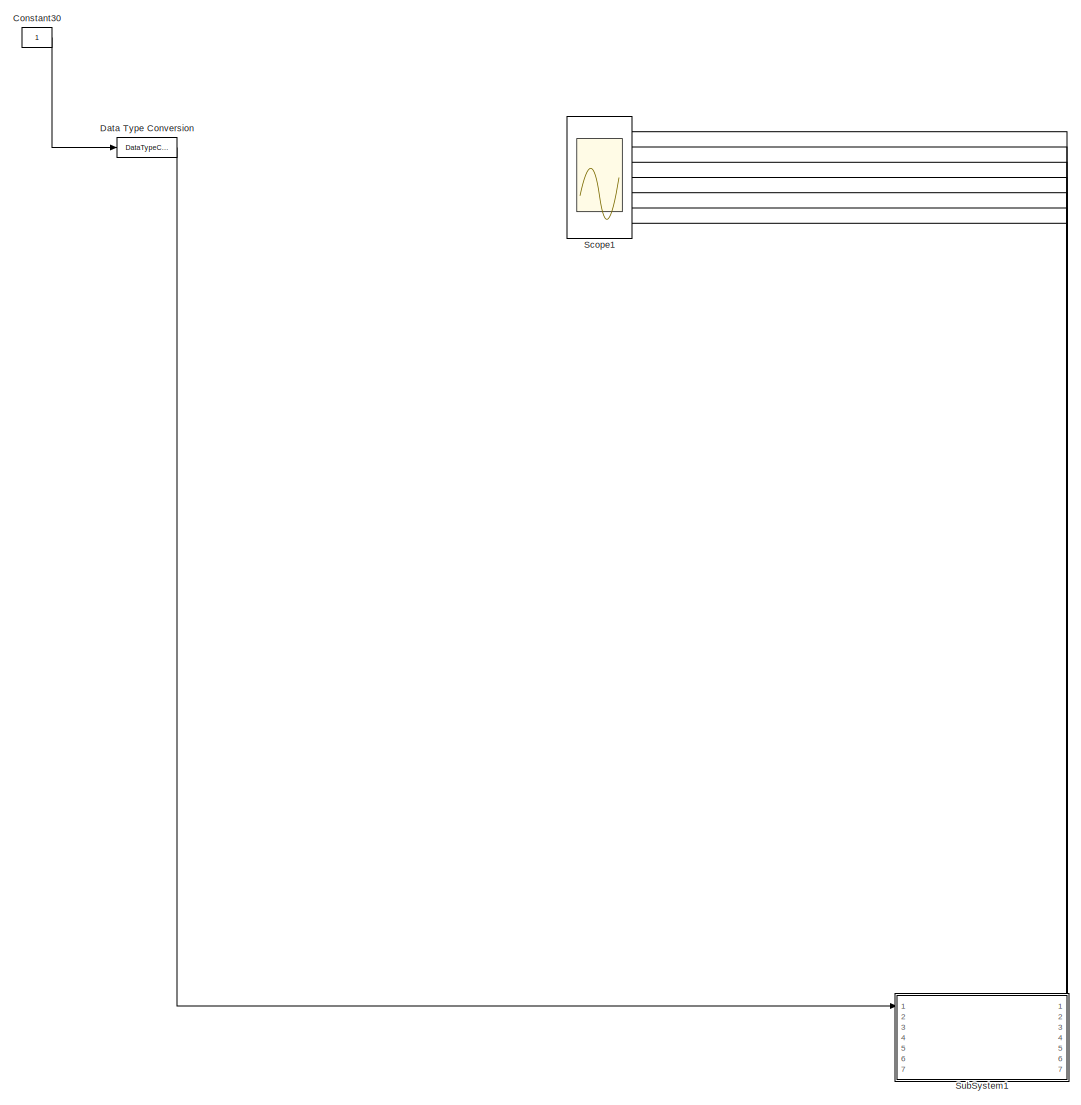
[diagram: root canvas - part 1/1, most of the canvas]
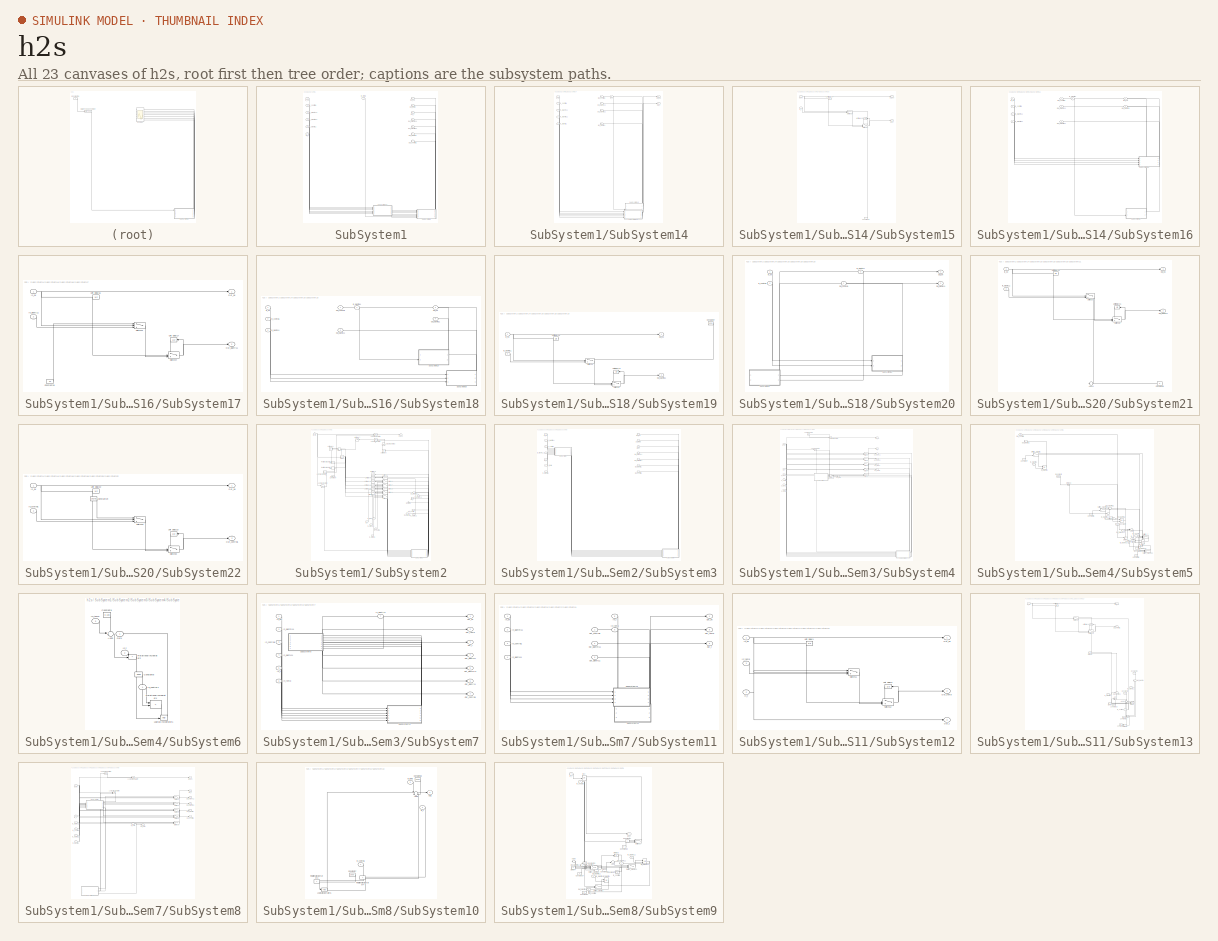
[diagram: thumbnail index - all 23 canvases of the model, root first then tree order]
MODEL h2s
KIND model
BLOCK [Constant] Constant30
  SID = 0
BLOCK [DataTypeConversion] Data Type Conversion
  OutDataTypeStr = boolean
  RndMeth = Floor
  SID = 0
  SaturateOnIntegerOverflow = off
BLOCK [Scope] Scope1
  DataFormat = StructureWithTime
  Floating = off
  LimitDataPoints = off
  MaxDataPoints = 500000
  NumInputPorts = 7
  Ports = [7]
  SID = 0
  SampleTime = 0
  ShowLegends = off
  YMax = 5~5~5~5~5~5~5
  YMin = -5~-5~-5~-5~-5~-5~-5
BLOCK [SubSystem] SubSystem1
  FunctionWithSeparateData = off
  MaskHideContents = off
  MinAlgLoopOccurrences = off
  Opaque = off
  Ports = [7, 7]
  PropExecContextOutsideSubsystem = off
  RTWSystemCode = Auto
  RequestExecContextInheritance = off
  SID = 0
BLOCK [Inport] SubSystem1/In_control1
  IconDisplay = Port number
  Port = 2
  SID = 0
BLOCK [Inport] SubSystem1/In_ok
  IconDisplay = Port number
  SID = 0
BLOCK [Inport] SubSystem1/In_plantm11
  IconDisplay = Port number
  Port = 4
  SID = 0
BLOCK [Inport] SubSystem1/In_plantr11
  IconDisplay = Port number
  Port = 5
  SID = 0
BLOCK [Inport] SubSystem1/In_plantv11
  IconDisplay = Port number
  Port = 3
  SID = 0
BLOCK [Inport] SubSystem1/In_t
  IconDisplay = Port number
  Port = 6
  SID = 0
BLOCK [Inport] SubSystem1/In_temp
  IconDisplay = Port number
  Port = 7
  SID = 0
BLOCK [Outport] SubSystem1/Out_control1
  IconDisplay = Port number
  Port = 7
  SID = 0
BLOCK [Outport] SubSystem1/Out_ok
  IconDisplay = Port number
  SID = 0
BLOCK [Outport] SubSystem1/Out_plantm11
  IconDisplay = Port number
  Port = 5
  SID = 0
BLOCK [Outport] SubSystem1/Out_plantr11
  IconDisplay = Port number
  Port = 6
  SID = 0
BLOCK [Outport] SubSystem1/Out_plantv11
  IconDisplay = Port number
  Port = 4
  SID = 0
BLOCK [Outport] SubSystem1/Out_t
  IconDisplay = Port number
  Port = 3
  SID = 0
BLOCK [Outport] SubSystem1/Out_temp
  IconDisplay = Port number
  Port = 2
  SID = 0
BLOCK [SubSystem] SubSystem1/SubSystem14
  FunctionWithSeparateData = off
  MaskHideContents = off
  MinAlgLoopOccurrences = off
  Opaque = off
  Ports = [6, 6]
  PropExecContextOutsideSubsystem = off
  RTWSystemCode = Auto
  RequestExecContextInheritance = off
  SID = 0
BLOCK [Inport] SubSystem1/SubSystem14/In_control1
  IconDisplay = Port number
  Port = 2
  SID = 0
BLOCK [Inport] SubSystem1/SubSystem14/In_ok
  IconDisplay = Port number
  SID = 0
BLOCK [Inport] SubSystem1/SubSystem14/In_plantm11
  IconDisplay = Port number
  Port = 4
  SID = 0
BLOCK [Inport] SubSystem1/SubSystem14/In_plantr11
  IconDisplay = Port number
  Port = 5
  SID = 0
BLOCK [Inport] SubSystem1/SubSystem14/In_plantv11
  IconDisplay = Port number
  Port = 3
  SID = 0
BLOCK [Inport] SubSystem1/SubSystem14/In_t
  IconDisplay = Port number
  Port = 6
  SID = 0
BLOCK [Outport] SubSystem1/SubSystem14/Out_control1
  IconDisplay = Port number
  SID = 0
BLOCK [Outport] SubSystem1/SubSystem14/Out_ok
  IconDisplay = Port number
  Port = 5
  SID = 0
BLOCK [Outport] SubSystem1/SubSystem14/Out_plantm11
  IconDisplay = Port number
  Port = 3
  SID = 0
BLOCK [Outport] SubSystem1/SubSystem14/Out_plantr11
  IconDisplay = Port number
  Port = 4
  SID = 0
BLOCK [Outport] SubSystem1/SubSystem14/Out_plantv11
  IconDisplay = Port number
  Port = 2
  SID = 0
BLOCK [Outport] SubSystem1/SubSystem14/Out_t
  IconDisplay = Port number
  Port = 6
  SID = 0
BLOCK [SubSystem] SubSystem1/SubSystem14/SubSystem15
  FunctionWithSeparateData = off
  MaskHideContents = off
  MinAlgLoopOccurrences = off
  Opaque = off
  Ports = [2, 2]
  PropExecContextOutsideSubsystem = off
  RTWSystemCode = Auto
  RequestExecContextInheritance = off
  SID = 0
BLOCK [Constant] SubSystem1/SubSystem14/SubSystem15/Constant25
  SID = 0
  Value = 0
BLOCK [Inport] SubSystem1/SubSystem14/SubSystem15/In_ok
  IconDisplay = Port number
  SID = 0
BLOCK [Inport] SubSystem1/SubSystem14/SubSystem15/In_t
  IconDisplay = Port number
  Port = 2
  SID = 0
BLOCK [Outport] SubSystem1/SubSystem14/SubSystem15/Out_ok
  IconDisplay = Port number
  SID = 0
BLOCK [Outport] SubSystem1/SubSystem14/SubSystem15/Out_t
  IconDisplay = Port number
  Port = 2
  SID = 0
BLOCK [Switch] SubSystem1/SubSystem14/SubSystem15/Switch21
  Criteria = u2 > Threshold
  InputSameDT = off
  SID = 0
  SaturateOnIntegerOverflow = off
BLOCK [Switch] SubSystem1/SubSystem14/SubSystem15/Switch22
  Criteria = u2 > Threshold
  InputSameDT = off
  SID = 0
  SaturateOnIntegerOverflow = off
BLOCK [UnitDelay] SubSystem1/SubSystem14/SubSystem15/Unit Delay14
  InputProcessing = Elements as channels (sample based)
  SID = 0
  SampleTime = 0
BLOCK [UnitDelay] SubSystem1/SubSystem14/SubSystem15/Unit Delay15
  InputProcessing = Elements as channels (sample based)
  SID = 0
  SampleTime = 0
BLOCK [SubSystem] SubSystem1/SubSystem14/SubSystem16
  FunctionWithSeparateData = off
  MaskHideContents = off
  MinAlgLoopOccurrences = off
  Opaque = off
  Ports = [5, 5]
  PropExecContextOutsideSubsystem = off
  RTWSystemCode = Auto
  RequestExecContextInheritance = off
  SID = 0
BLOCK [Inport] SubSystem1/SubSystem14/SubSystem16/In_control1
  IconDisplay = Port number
  Port = 2
  SID = 0
BLOCK [Inport] SubSystem1/SubSystem14/SubSystem16/In_ok
  IconDisplay = Port number
  SID = 0
BLOCK [Inport] SubSystem1/SubSystem14/SubSystem16/In_plantm11
  IconDisplay = Port number
  Port = 4
  SID = 0
BLOCK [Inport] SubSystem1/SubSystem14/SubSystem16/In_plantr11
  IconDisplay = Port number
  Port = 5
  SID = 0
BLOCK [Inport] SubSystem1/SubSystem14/SubSystem16/In_plantv11
  IconDisplay = Port number
  Port = 3
  SID = 0
BLOCK [Outport] SubSystem1/SubSystem14/SubSystem16/Out_control1
  IconDisplay = Port number
  SID = 0
BLOCK [Outport] SubSystem1/SubSystem14/SubSystem16/Out_ok
  IconDisplay = Port number
  Port = 4
  SID = 0
BLOCK [Outport] SubSystem1/SubSystem14/SubSystem16/Out_plantm11
  IconDisplay = Port number
  Port = 3
  SID = 0
BLOCK [Outport] SubSystem1/SubSystem14/SubSystem16/Out_plantr11
  IconDisplay = Port number
  Port = 5
  SID = 0
BLOCK [Outport] SubSystem1/SubSystem14/SubSystem16/Out_plantv11
  IconDisplay = Port number
  Port = 2
  SID = 0
BLOCK [SubSystem] SubSystem1/SubSystem14/SubSystem16/SubSystem17
  FunctionWithSeparateData = off
  MaskHideContents = off
  MinAlgLoopOccurrences = off
  Opaque = off
  Ports = [2, 2]
  PropExecContextOutsideSubsystem = off
  RTWSystemCode = Auto
  RequestExecContextInheritance = off
  SID = 0
BLOCK [Constant] SubSystem1/SubSystem14/SubSystem16/SubSystem17/Constant26
  SID = 0
  Value = 30
BLOCK [Inport] SubSystem1/SubSystem14/SubSystem16/SubSystem17/In_ok
  IconDisplay = Port number
  SID = 0
BLOCK [Inport] SubSystem1/SubSystem14/SubSystem16/SubSystem17/In_plantr11
  IconDisplay = Port number
  Port = 2
  SID = 0
BLOCK [Outport] SubSystem1/SubSystem14/SubSystem16/SubSystem17/Out_ok
  IconDisplay = Port number
  SID = 0
BLOCK [Outport] SubSystem1/SubSystem14/SubSystem16/SubSystem17/Out_plantr11
  IconDisplay = Port number
  Port = 2
  SID = 0
BLOCK [Switch] SubSystem1/SubSystem14/SubSystem16/SubSystem17/Switch23
  Criteria = u2 > Threshold
  InputSameDT = off
  SID = 0
  SaturateOnIntegerOverflow = off
BLOCK [Switch] SubSystem1/SubSystem14/SubSystem16/SubSystem17/Switch24
  Criteria = u2 > Threshold
  InputSameDT = off
  SID = 0
  SaturateOnIntegerOverflow = off
BLOCK [UnitDelay] SubSystem1/SubSystem14/SubSystem16/SubSystem17/Unit Delay16
  InputProcessing = Elements as channels (sample based)
  SID = 0
  SampleTime = 0
BLOCK [UnitDelay] SubSystem1/SubSystem14/SubSystem16/SubSystem17/Unit Delay17
  InputProcessing = Elements as channels (sample based)
  SID = 0
  SampleTime = 0
BLOCK [SubSystem] SubSystem1/SubSystem14/SubSystem16/SubSystem18
  FunctionWithSeparateData = off
  MaskHideContents = off
  MinAlgLoopOccurrences = off
  Opaque = off
  Ports = [4, 4]
  PropExecContextOutsideSubsystem = off
  RTWSystemCode = Auto
  RequestExecContextInheritance = off
  SID = 0
BLOCK [Inport] SubSystem1/SubSystem14/SubSystem16/SubSystem18/In_control1
  IconDisplay = Port number
  Port = 2
  SID = 0
BLOCK [Inport] SubSystem1/SubSystem14/SubSystem16/SubSystem18/In_ok
  IconDisplay = Port number
  SID = 0
BLOCK [Inport] SubSystem1/SubSystem14/SubSystem16/SubSystem18/In_plantm11
  IconDisplay = Port number
  Port = 4
  SID = 0
BLOCK [Inport] SubSystem1/SubSystem14/SubSystem16/SubSystem18/In_plantv11
  IconDisplay = Port number
  Port = 3
  SID = 0
BLOCK [Outport] SubSystem1/SubSystem14/SubSystem16/SubSystem18/Out_control1
  IconDisplay = Port number
  SID = 0
BLOCK [Outport] SubSystem1/SubSystem14/SubSystem16/SubSystem18/Out_ok
  IconDisplay = Port number
  Port = 3
  SID = 0
BLOCK [Outport] SubSystem1/SubSystem14/SubSystem16/SubSystem18/Out_plantm11
  IconDisplay = Port number
  Port = 4
  SID = 0
BLOCK [Outport] SubSystem1/SubSystem14/SubSystem16/SubSystem18/Out_plantv11
  IconDisplay = Port number
  Port = 2
  SID = 0
BLOCK [SubSystem] SubSystem1/SubSystem14/SubSystem16/SubSystem18/SubSystem19
  FunctionWithSeparateData = off
  MaskHideContents = off
  MinAlgLoopOccurrences = off
  Opaque = off
  Ports = [2, 2]
  PropExecContextOutsideSubsystem = off
  RTWSystemCode = Auto
  RequestExecContextInheritance = off
  SID = 0
BLOCK [Constant] SubSystem1/SubSystem14/SubSystem16/SubSystem18/SubSystem19/Constant27
  SID = 0
  Value = 1250
BLOCK [Inport] SubSystem1/SubSystem14/SubSystem16/SubSystem18/SubSystem19/In_ok
  IconDisplay = Port number
  SID = 0
BLOCK [Inport] SubSystem1/SubSystem14/SubSystem16/SubSystem18/SubSystem19/In_plantm11
  IconDisplay = Port number
  Port = 2
  SID = 0
BLOCK [Outport] SubSystem1/SubSystem14/SubSystem16/SubSystem18/SubSystem19/Out_ok
  IconDisplay = Port number
  SID = 0
BLOCK [Outport] SubSystem1/SubSystem14/SubSystem16/SubSystem18/SubSystem19/Out_plantm11
  IconDisplay = Port number
  Port = 2
  SID = 0
BLOCK [Switch] SubSystem1/SubSystem14/SubSystem16/SubSystem18/SubSystem19/Switch25
  Criteria = u2 > Threshold
  InputSameDT = off
  SID = 0
  SaturateOnIntegerOverflow = off
BLOCK [Switch] SubSystem1/SubSystem14/SubSystem16/SubSystem18/SubSystem19/Switch26
  Criteria = u2 > Threshold
  InputSameDT = off
  SID = 0
  SaturateOnIntegerOverflow = off
BLOCK [UnitDelay] SubSystem1/SubSystem14/SubSystem16/SubSystem18/SubSystem19/Unit Delay18
  InputProcessing = Elements as channels (sample based)
  SID = 0
  SampleTime = 0
BLOCK [UnitDelay] SubSystem1/SubSystem14/SubSystem16/SubSystem18/SubSystem19/Unit Delay19
  InputProcessing = Elements as channels (sample based)
  SID = 0
  SampleTime = 0
BLOCK [SubSystem] SubSystem1/SubSystem14/SubSystem16/SubSystem18/SubSystem20
  FunctionWithSeparateData = off
  MaskHideContents = off
  MinAlgLoopOccurrences = off
  Opaque = off
  Ports = [3, 3]
  PropExecContextOutsideSubsystem = off
  RTWSystemCode = Auto
  RequestExecContextInheritance = off
  SID = 0
BLOCK [Inport] SubSystem1/SubSystem14/SubSystem16/SubSystem18/SubSystem20/In_control1
  IconDisplay = Port number
  Port = 2
  SID = 0
BLOCK [Inport] SubSystem1/SubSystem14/SubSystem16/SubSystem18/SubSystem20/In_ok
  IconDisplay = Port number
  SID = 0
BLOCK [Inport] SubSystem1/SubSystem14/SubSystem16/SubSystem18/SubSystem20/In_plantv11
  IconDisplay = Port number
  Port = 3
  SID = 0
BLOCK [Outport] SubSystem1/SubSystem14/SubSystem16/SubSystem18/SubSystem20/Out_control1
  IconDisplay = Port number
  SID = 0
BLOCK [Outport] SubSystem1/SubSystem14/SubSystem16/SubSystem18/SubSystem20/Out_ok
  IconDisplay = Port number
  Port = 2
  SID = 0
BLOCK [Outport] SubSystem1/SubSystem14/SubSystem16/SubSystem18/SubSystem20/Out_plantv11
  IconDisplay = Port number
  Port = 3
  SID = 0
BLOCK [SubSystem] SubSystem1/SubSystem14/SubSystem16/SubSystem18/SubSystem20/SubSystem21
  FunctionWithSeparateData = off
  MaskHideContents = off
  MinAlgLoopOccurrences = off
  Opaque = off
  Ports = [2, 2]
  PropExecContextOutsideSubsystem = off
  RTWSystemCode = Auto
  RequestExecContextInheritance = off
  SID = 0
BLOCK [Sum] SubSystem1/SubSystem14/SubSystem16/SubSystem18/SubSystem20/SubSystem21/Add11
  InputSameDT = off
  Inputs = -
  OutDataTypeStr = Inherit: Inherit via internal rule
  Ports = [1, 1]
  SID = 0
  SaturateOnIntegerOverflow = off
BLOCK [Constant] SubSystem1/SubSystem14/SubSystem16/SubSystem18/SubSystem20/SubSystem21/Constant28
  SID = 0
  Value = 2
BLOCK [Inport] SubSystem1/SubSystem14/SubSystem16/SubSystem18/SubSystem20/SubSystem21/In_ok
  IconDisplay = Port number
  SID = 0
BLOCK [Inport] SubSystem1/SubSystem14/SubSystem16/SubSystem18/SubSystem20/SubSystem21/In_plantv11
  IconDisplay = Port number
  Port = 2
  SID = 0
BLOCK [Outport] SubSystem1/SubSystem14/SubSystem16/SubSystem18/SubSystem20/SubSystem21/Out_ok
  IconDisplay = Port number
  SID = 0
BLOCK [Outport] SubSystem1/SubSystem14/SubSystem16/SubSystem18/SubSystem20/SubSystem21/Out_plantv11
  IconDisplay = Port number
  Port = 2
  SID = 0
BLOCK [Switch] SubSystem1/SubSystem14/SubSystem16/SubSystem18/SubSystem20/SubSystem21/Switch27
  Criteria = u2 > Threshold
  InputSameDT = off
  SID = 0
  SaturateOnIntegerOverflow = off
BLOCK [Switch] SubSystem1/SubSystem14/SubSystem16/SubSystem18/SubSystem20/SubSystem21/Switch28
  Criteria = u2 > Threshold
  InputSameDT = off
  SID = 0
  SaturateOnIntegerOverflow = off
BLOCK [UnitDelay] SubSystem1/SubSystem14/SubSystem16/SubSystem18/SubSystem20/SubSystem21/Unit Delay20
  InputProcessing = Elements as channels (sample based)
  SID = 0
  SampleTime = 0
BLOCK [UnitDelay] SubSystem1/SubSystem14/SubSystem16/SubSystem18/SubSystem20/SubSystem21/Unit Delay21
  InputProcessing = Elements as channels (sample based)
  SID = 0
  SampleTime = 0
BLOCK [SubSystem] SubSystem1/SubSystem14/SubSystem16/SubSystem18/SubSystem20/SubSystem22
  FunctionWithSeparateData = off
  MaskHideContents = off
  MinAlgLoopOccurrences = off
  Opaque = off
  Ports = [2, 2]
  PropExecContextOutsideSubsystem = off
  RTWSystemCode = Auto
  RequestExecContextInheritance = off
  SID = 0
BLOCK [Constant] SubSystem1/SubSystem14/SubSystem16/SubSystem18/SubSystem20/SubSystem22/Constant29
  SID = 0
  Value = 2027.5
BLOCK [Inport] SubSystem1/SubSystem14/SubSystem16/SubSystem18/SubSystem20/SubSystem22/In_control1
  IconDisplay = Port number
  Port = 2
  SID = 0
BLOCK [Inport] SubSystem1/SubSystem14/SubSystem16/SubSystem18/SubSystem20/SubSystem22/In_ok
  IconDisplay = Port number
  SID = 0
BLOCK [Outport] SubSystem1/SubSystem14/SubSystem16/SubSystem18/SubSystem20/SubSystem22/Out_control1
  IconDisplay = Port number
  Port = 2
  SID = 0
BLOCK [Outport] SubSystem1/SubSystem14/SubSystem16/SubSystem18/SubSystem20/SubSystem22/Out_ok
  IconDisplay = Port number
  SID = 0
BLOCK [Switch] SubSystem1/SubSystem14/SubSystem16/SubSystem18/SubSystem20/SubSystem22/Switch29
  Criteria = u2 > Threshold
  InputSameDT = off
  SID = 0
  SaturateOnIntegerOverflow = off
BLOCK [Switch] SubSystem1/SubSystem14/SubSystem16/SubSystem18/SubSystem20/SubSystem22/Switch30
  Criteria = u2 > Threshold
  InputSameDT = off
  SID = 0
  SaturateOnIntegerOverflow = off
BLOCK [UnitDelay] SubSystem1/SubSystem14/SubSystem16/SubSystem18/SubSystem20/SubSystem22/Unit Delay22
  InputProcessing = Elements as channels (sample based)
  SID = 0
  SampleTime = 0
BLOCK [UnitDelay] SubSystem1/SubSystem14/SubSystem16/SubSystem18/SubSystem20/SubSystem22/Unit Delay23
  InputProcessing = Elements as channels (sample based)
  SID = 0
  SampleTime = 0
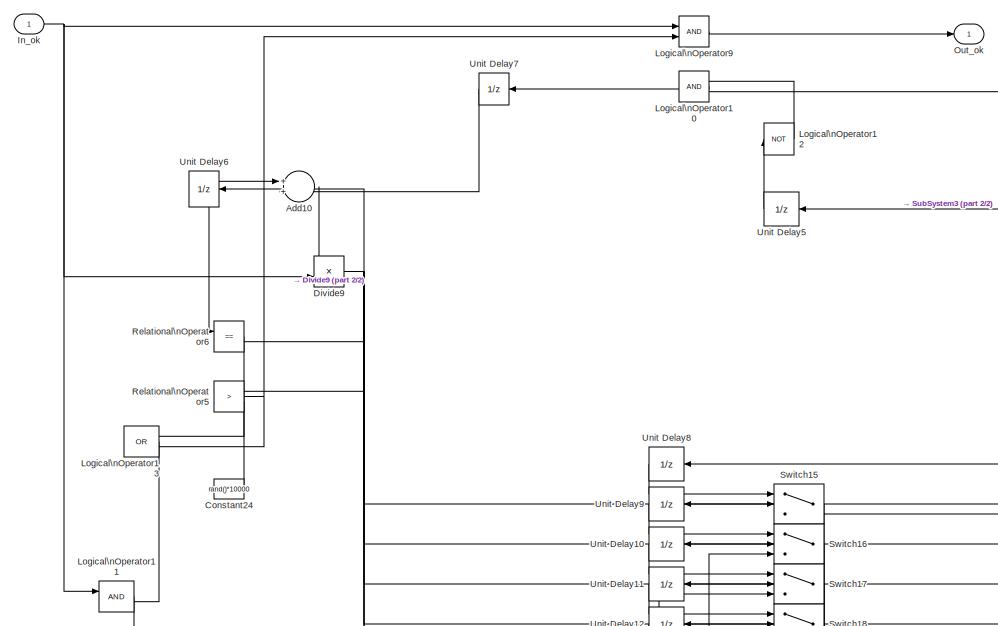
[diagram: SubSystem1/SubSystem2 - part 1/2, full width, top band]
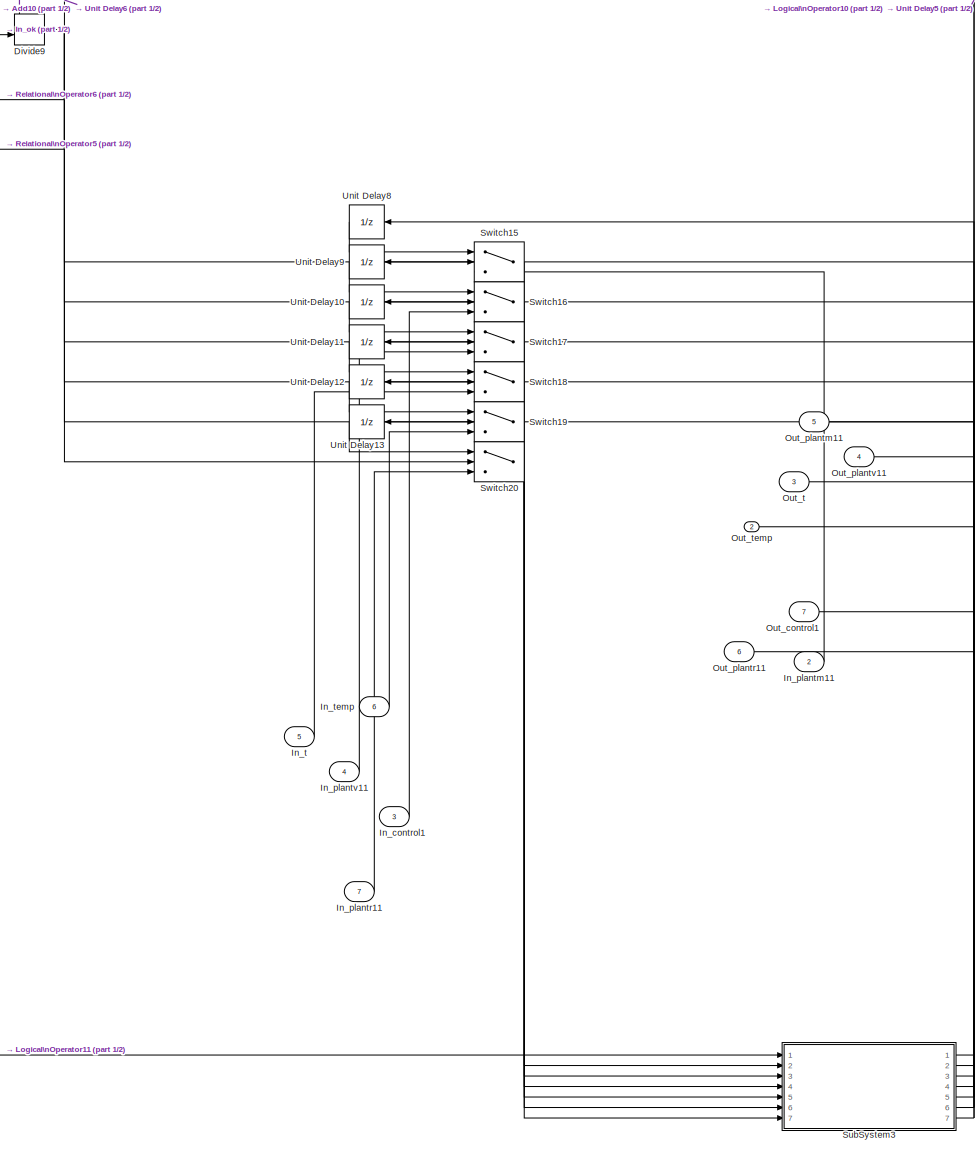
[diagram: SubSystem1/SubSystem2 - part 2/2, most of the canvas]
BLOCK [SubSystem] SubSystem1/SubSystem2
  FunctionWithSeparateData = off
  MaskHideContents = off
  MinAlgLoopOccurrences = off
  Opaque = off
  Ports = [7, 7]
  PropExecContextOutsideSubsystem = off
  RTWSystemCode = Auto
  RequestExecContextInheritance = off
  SID = 0
BLOCK [Sum] SubSystem1/SubSystem2/Add10
  InputSameDT = off
  OutDataTypeStr = Inherit: Inherit via internal rule
  Ports = [2, 1]
  SID = 0
  SaturateOnIntegerOverflow = off
BLOCK [Constant] SubSystem1/SubSystem2/Constant24
  SID = 0
  Value = rand()*10000
BLOCK [Product] SubSystem1/SubSystem2/Divide9
  InputSameDT = off
  Inputs = **
  OutDataTypeStr = Inherit: Inherit via internal rule
  Ports = [2, 1]
  SID = 0
  SaturateOnIntegerOverflow = off
BLOCK [Inport] SubSystem1/SubSystem2/In_control1
  IconDisplay = Port number
  Port = 3
  SID = 0
BLOCK [Inport] SubSystem1/SubSystem2/In_ok
  IconDisplay = Port number
  SID = 0
BLOCK [Inport] SubSystem1/SubSystem2/In_plantm11
  IconDisplay = Port number
  Port = 2
  SID = 0
BLOCK [Inport] SubSystem1/SubSystem2/In_plantr11
  IconDisplay = Port number
  Port = 7
  SID = 0
BLOCK [Inport] SubSystem1/SubSystem2/In_plantv11
  IconDisplay = Port number
  Port = 4
  SID = 0
BLOCK [Inport] SubSystem1/SubSystem2/In_t
  IconDisplay = Port number
  Port = 5
  SID = 0
BLOCK [Inport] SubSystem1/SubSystem2/In_temp
  IconDisplay = Port number
  Port = 6
  SID = 0
BLOCK [Logic] SubSystem1/SubSystem2/Logical\nOperator10
  OutDataTypeStr = boolean
  Ports = [2, 1]
  SID = 0
BLOCK [Logic] SubSystem1/SubSystem2/Logical\nOperator11
  OutDataTypeStr = boolean
  Ports = [2, 1]
  SID = 0
BLOCK [Logic] SubSystem1/SubSystem2/Logical\nOperator12
  Operator = NOT
  OutDataTypeStr = boolean
  Ports = [1, 1]
  SID = 0
BLOCK [Logic] SubSystem1/SubSystem2/Logical\nOperator13
  Operator = OR
  OutDataTypeStr = boolean
  Ports = [2, 1]
  SID = 0
BLOCK [Logic] SubSystem1/SubSystem2/Logical\nOperator9
  OutDataTypeStr = boolean
  Ports = [2, 1]
  SID = 0
BLOCK [Outport] SubSystem1/SubSystem2/Out_control1
  IconDisplay = Port number
  Port = 7
  SID = 0
BLOCK [Outport] SubSystem1/SubSystem2/Out_ok
  IconDisplay = Port number
  SID = 0
BLOCK [Outport] SubSystem1/SubSystem2/Out_plantm11
  IconDisplay = Port number
  Port = 5
  SID = 0
BLOCK [Outport] SubSystem1/SubSystem2/Out_plantr11
  IconDisplay = Port number
  Port = 6
  SID = 0
BLOCK [Outport] SubSystem1/SubSystem2/Out_plantv11
  IconDisplay = Port number
  Port = 4
  SID = 0
BLOCK [Outport] SubSystem1/SubSystem2/Out_t
  IconDisplay = Port number
  Port = 3
  SID = 0
BLOCK [Outport] SubSystem1/SubSystem2/Out_temp
  IconDisplay = Port number
  Port = 2
  SID = 0
BLOCK [RelationalOperator] SubSystem1/SubSystem2/Relational\nOperator5
  Operator = >
  OutDataTypeStr = boolean
  Ports = [2, 1]
  SID = 0
BLOCK [RelationalOperator] SubSystem1/SubSystem2/Relational\nOperator6
  Operator = ==
  OutDataTypeStr = boolean
  Ports = [2, 1]
  SID = 0
BLOCK [SubSystem] SubSystem1/SubSystem2/SubSystem3
  FunctionWithSeparateData = off
  MaskHideContents = off
  MinAlgLoopOccurrences = off
  Opaque = off
  Ports = [7, 7]
  PropExecContextOutsideSubsystem = off
  RTWSystemCode = Auto
  RequestExecContextInheritance = off
  SID = 0
BLOCK [Inport] SubSystem1/SubSystem2/SubSystem3/In_control1
  IconDisplay = Port number
  Port = 3
  SID = 0
BLOCK [Inport] SubSystem1/SubSystem2/SubSystem3/In_ok
  IconDisplay = Port number
  SID = 0
BLOCK [Inport] SubSystem1/SubSystem2/SubSystem3/In_plantm11
  IconDisplay = Port number
  Port = 2
  SID = 0
BLOCK [Inport] SubSystem1/SubSystem2/SubSystem3/In_plantr11
  IconDisplay = Port number
  Port = 7
  SID = 0
BLOCK [Inport] SubSystem1/SubSystem2/SubSystem3/In_plantv11
  IconDisplay = Port number
  Port = 4
  SID = 0
BLOCK [Inport] SubSystem1/SubSystem2/SubSystem3/In_t
  IconDisplay = Port number
  Port = 5
  SID = 0
BLOCK [Inport] SubSystem1/SubSystem2/SubSystem3/In_temp
  IconDisplay = Port number
  Port = 6
  SID = 0
BLOCK [Outport] SubSystem1/SubSystem2/SubSystem3/Out_control1
  IconDisplay = Port number
  Port = 7
  SID = 0
BLOCK [Outport] SubSystem1/SubSystem2/SubSystem3/Out_ok
  IconDisplay = Port number
  SID = 0
BLOCK [Outport] SubSystem1/SubSystem2/SubSystem3/Out_plantm11
  IconDisplay = Port number
  Port = 5
  SID = 0
BLOCK [Outport] SubSystem1/SubSystem2/SubSystem3/Out_plantr11
  IconDisplay = Port number
  Port = 6
  SID = 0
BLOCK [Outport] SubSystem1/SubSystem2/SubSystem3/Out_plantv11
  IconDisplay = Port number
  Port = 4
  SID = 0
BLOCK [Outport] SubSystem1/SubSystem2/SubSystem3/Out_t
  IconDisplay = Port number
  Port = 3
  SID = 0
BLOCK [Outport] SubSystem1/SubSystem2/SubSystem3/Out_temp
  IconDisplay = Port number
  Port = 2
  SID = 0
BLOCK [SubSystem] SubSystem1/SubSystem2/SubSystem3/SubSystem4
  FunctionWithSeparateData = off
  MaskHideContents = off
  MinAlgLoopOccurrences = off
  Opaque = off
  Ports = [7, 7]
  PropExecContextOutsideSubsystem = off
  RTWSystemCode = Auto
  RequestExecContextInheritance = off
  SID = 0
BLOCK [Inport] SubSystem1/SubSystem2/SubSystem3/SubSystem4/In_control1
  IconDisplay = Port number
  Port = 5
  SID = 0
BLOCK [Inport] SubSystem1/SubSystem2/SubSystem3/SubSystem4/In_ok
  IconDisplay = Port number
  SID = 0
BLOCK [Inport] SubSystem1/SubSystem2/SubSystem3/SubSystem4/In_plantm11
  IconDisplay = Port number
  Port = 6
  SID = 0
BLOCK [Inport] SubSystem1/SubSystem2/SubSystem3/SubSystem4/In_plantr11
  IconDisplay = Port number
  Port = 7
  SID = 0
BLOCK [Inport] SubSystem1/SubSystem2/SubSystem3/SubSystem4/In_plantv11
  IconDisplay = Port number
  Port = 4
  SID = 0
BLOCK [Inport] SubSystem1/SubSystem2/SubSystem3/SubSystem4/In_t
  IconDisplay = Port number
  Port = 3
  SID = 0
BLOCK [Inport] SubSystem1/SubSystem2/SubSystem3/SubSystem4/In_temp
  IconDisplay = Port number
  Port = 2
  SID = 0
BLOCK [Logic] SubSystem1/SubSystem2/SubSystem3/SubSystem4/Logical\nOperator2
  OutDataTypeStr = boolean
  Ports = [2, 1]
  SID = 0
BLOCK [Logic] SubSystem1/SubSystem2/SubSystem3/SubSystem4/Logical\nOperator3
  OutDataTypeStr = boolean
  Ports = [2, 1]
  SID = 0
BLOCK [Logic] SubSystem1/SubSystem2/SubSystem3/SubSystem4/Logical\nOperator4
  Operator = NOT
  OutDataTypeStr = boolean
  Ports = [1, 1]
  SID = 0
BLOCK [Outport] SubSystem1/SubSystem2/SubSystem3/SubSystem4/Out_control1
  IconDisplay = Port number
  Port = 7
  SID = 0
BLOCK [Outport] SubSystem1/SubSystem2/SubSystem3/SubSystem4/Out_ok
  IconDisplay = Port number
  SID = 0
BLOCK [Outport] SubSystem1/SubSystem2/SubSystem3/SubSystem4/Out_plantm11
  IconDisplay = Port number
  Port = 5
  SID = 0
BLOCK [Outport] SubSystem1/SubSystem2/SubSystem3/SubSystem4/Out_plantr11
  IconDisplay = Port number
  Port = 6
  SID = 0
BLOCK [Outport] SubSystem1/SubSystem2/SubSystem3/SubSystem4/Out_plantv11
  IconDisplay = Port number
  Port = 4
  SID = 0
BLOCK [Outport] SubSystem1/SubSystem2/SubSystem3/SubSystem4/Out_t
  IconDisplay = Port number
  Port = 3
  SID = 0
BLOCK [Outport] SubSystem1/SubSystem2/SubSystem3/SubSystem4/Out_temp
  IconDisplay = Port number
  Port = 2
  SID = 0
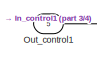
[diagram: SubSystem1/SubSystem2/SubSystem3/SubSystem4/SubSystem5 - part 1/4, top left region]
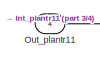
[diagram: SubSystem1/SubSystem2/SubSystem3/SubSystem4/SubSystem5 - part 2/4, top left region]
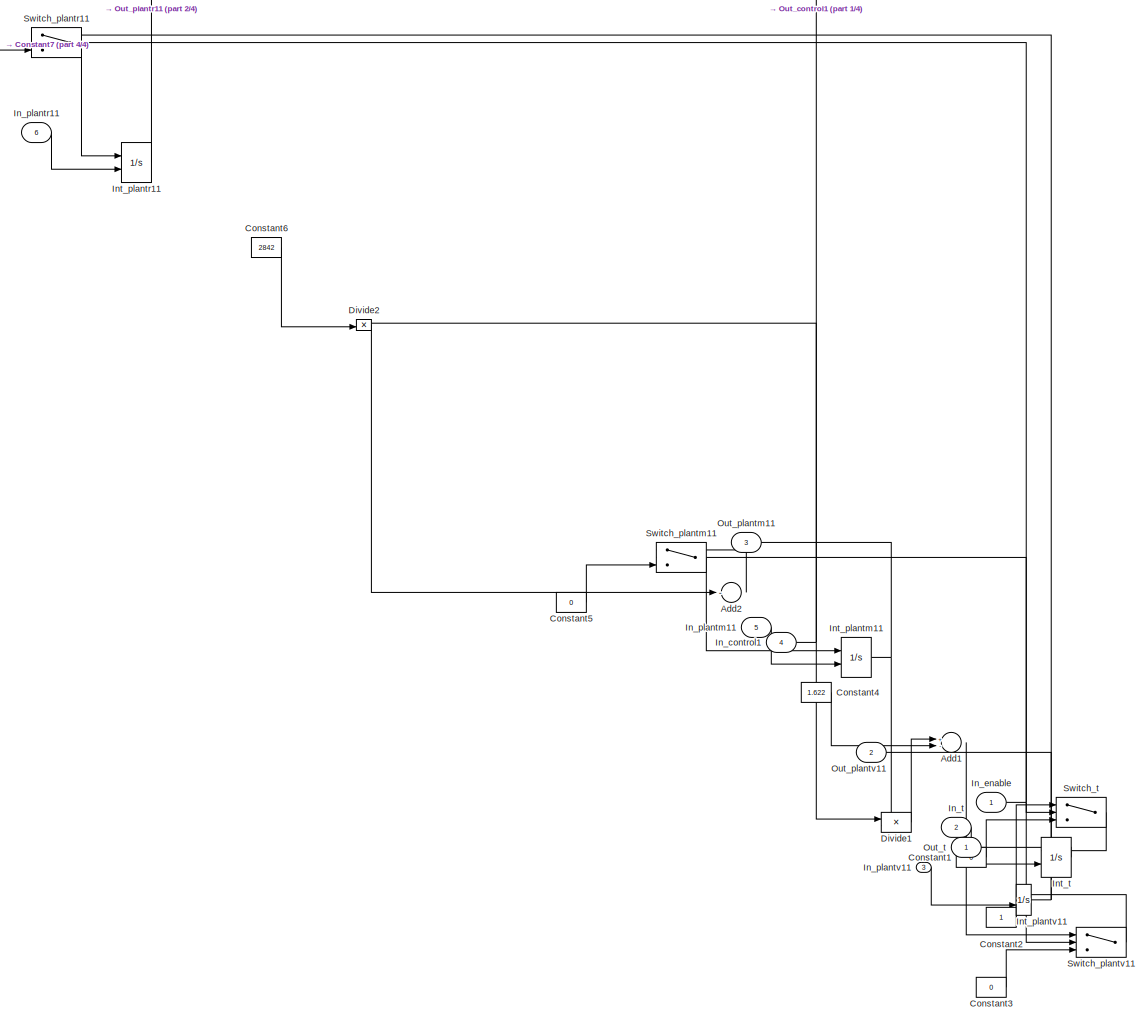
[diagram: SubSystem1/SubSystem2/SubSystem3/SubSystem4/SubSystem5 - part 3/4, most of the canvas]
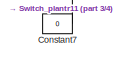
[diagram: SubSystem1/SubSystem2/SubSystem3/SubSystem4/SubSystem5 - part 4/4, top left region]
BLOCK [SubSystem] SubSystem1/SubSystem2/SubSystem3/SubSystem4/SubSystem5
  FunctionWithSeparateData = off
  MaskHideContents = off
  MinAlgLoopOccurrences = off
  Opaque = off
  Ports = [6, 5]
  PropExecContextOutsideSubsystem = off
  RTWSystemCode = Auto
  RequestExecContextInheritance = off
  SID = 0
BLOCK [Sum] SubSystem1/SubSystem2/SubSystem3/SubSystem4/SubSystem5/Add1
  InputSameDT = off
  Inputs = +-
  OutDataTypeStr = Inherit: Inherit via internal rule
  Ports = [2, 1]
  SID = 0
  SaturateOnIntegerOverflow = off
BLOCK [Sum] SubSystem1/SubSystem2/SubSystem3/SubSystem4/SubSystem5/Add2
  InputSameDT = off
  Inputs = -
  OutDataTypeStr = Inherit: Inherit via internal rule
  Ports = [1, 1]
  SID = 0
  SaturateOnIntegerOverflow = off
BLOCK [Constant] SubSystem1/SubSystem2/SubSystem3/SubSystem4/SubSystem5/Constant1
  SID = 0
  Value = 0
BLOCK [Constant] SubSystem1/SubSystem2/SubSystem3/SubSystem4/SubSystem5/Constant2
  SID = 0
BLOCK [Constant] SubSystem1/SubSystem2/SubSystem3/SubSystem4/SubSystem5/Constant3
  SID = 0
  Value = 0
BLOCK [Constant] SubSystem1/SubSystem2/SubSystem3/SubSystem4/SubSystem5/Constant4
  SID = 0
  Value = 1.622
BLOCK [Constant] SubSystem1/SubSystem2/SubSystem3/SubSystem4/SubSystem5/Constant5
  SID = 0
  Value = 0
BLOCK [Constant] SubSystem1/SubSystem2/SubSystem3/SubSystem4/SubSystem5/Constant6
  SID = 0
  Value = 2842
BLOCK [Constant] SubSystem1/SubSystem2/SubSystem3/SubSystem4/SubSystem5/Constant7
  SID = 0
  Value = 0
BLOCK [Product] SubSystem1/SubSystem2/SubSystem3/SubSystem4/SubSystem5/Divide1
  InputSameDT = off
  Inputs = */
  OutDataTypeStr = Inherit: Inherit via internal rule
  Ports = [2, 1]
  SID = 0
  SaturateOnIntegerOverflow = off
BLOCK [Product] SubSystem1/SubSystem2/SubSystem3/SubSystem4/SubSystem5/Divide2
  InputSameDT = off
  Inputs = */
  OutDataTypeStr = Inherit: Inherit via internal rule
  Ports = [2, 1]
  SID = 0
  SaturateOnIntegerOverflow = off
BLOCK [Inport] SubSystem1/SubSystem2/SubSystem3/SubSystem4/SubSystem5/In_control1
  IconDisplay = Port number
  Port = 4
  SID = 0
BLOCK [Inport] SubSystem1/SubSystem2/SubSystem3/SubSystem4/SubSystem5/In_enable
  IconDisplay = Port number
  SID = 0
BLOCK [Inport] SubSystem1/SubSystem2/SubSystem3/SubSystem4/SubSystem5/In_plantm11
  IconDisplay = Port number
  Port = 5
  SID = 0
BLOCK [Inport] SubSystem1/SubSystem2/SubSystem3/SubSystem4/SubSystem5/In_plantr11
  IconDisplay = Port number
  Port = 6
  SID = 0
BLOCK [Inport] SubSystem1/SubSystem2/SubSystem3/SubSystem4/SubSystem5/In_plantv11
  IconDisplay = Port number
  Port = 3
  SID = 0
BLOCK [Inport] SubSystem1/SubSystem2/SubSystem3/SubSystem4/SubSystem5/In_t
  IconDisplay = Port number
  Port = 2
  SID = 0
BLOCK [Integrator] SubSystem1/SubSystem2/SubSystem3/SubSystem4/SubSystem5/Int_plantm11
  InitialConditionSource = external
  Ports = [2, 1]
  SID = 0
BLOCK [Integrator] SubSystem1/SubSystem2/SubSystem3/SubSystem4/SubSystem5/Int_plantr11
  InitialConditionSource = external
  Ports = [2, 1]
  SID = 0
BLOCK [Integrator] SubSystem1/SubSystem2/SubSystem3/SubSystem4/SubSystem5/Int_plantv11
  InitialConditionSource = external
  Ports = [2, 1]
  SID = 0
BLOCK [Integrator] SubSystem1/SubSystem2/SubSystem3/SubSystem4/SubSystem5/Int_t
  InitialConditionSource = external
  Ports = [2, 1]
  SID = 0
BLOCK [Outport] SubSystem1/SubSystem2/SubSystem3/SubSystem4/SubSystem5/Out_control1
  IconDisplay = Port number
  Port = 5
  SID = 0
BLOCK [Outport] SubSystem1/SubSystem2/SubSystem3/SubSystem4/SubSystem5/Out_plantm11
  IconDisplay = Port number
  Port = 3
  SID = 0
BLOCK [Outport] SubSystem1/SubSystem2/SubSystem3/SubSystem4/SubSystem5/Out_plantr11
  IconDisplay = Port number
  Port = 4
  SID = 0
BLOCK [Outport] SubSystem1/SubSystem2/SubSystem3/SubSystem4/SubSystem5/Out_plantv11
  IconDisplay = Port number
  Port = 2
  SID = 0
BLOCK [Outport] SubSystem1/SubSystem2/SubSystem3/SubSystem4/SubSystem5/Out_t
  IconDisplay = Port number
  SID = 0
BLOCK [Switch] SubSystem1/SubSystem2/SubSystem3/SubSystem4/SubSystem5/Switch_plantm11
  Criteria = u2 > Threshold
  InputSameDT = off
  SID = 0
  SaturateOnIntegerOverflow = off
BLOCK [Switch] SubSystem1/SubSystem2/SubSystem3/SubSystem4/SubSystem5/Switch_plantr11
  Criteria = u2 > Threshold
  InputSameDT = off
  SID = 0
  SaturateOnIntegerOverflow = off
BLOCK [Switch] SubSystem1/SubSystem2/SubSystem3/SubSystem4/SubSystem5/Switch_plantv11
  Criteria = u2 > Threshold
  InputSameDT = off
  SID = 0
  SaturateOnIntegerOverflow = off
BLOCK [Switch] SubSystem1/SubSystem2/SubSystem3/SubSystem4/SubSystem5/Switch_t
  Criteria = u2 > Threshold
  InputSameDT = off
  SID = 0
  SaturateOnIntegerOverflow = off
BLOCK [SubSystem] SubSystem1/SubSystem2/SubSystem3/SubSystem4/SubSystem6
  FunctionWithSeparateData = off
  MaskHideContents = off
  MinAlgLoopOccurrences = off
  Opaque = off
  Ports = [3, 1]
  PropExecContextOutsideSubsystem = off
  RTWSystemCode = Auto
  RequestExecContextInheritance = off
  SID = 0
BLOCK [Sum] SubSystem1/SubSystem2/SubSystem3/SubSystem4/SubSystem6/Add3
  InputSameDT = off
  OutDataTypeStr = Inherit: Inherit via internal rule
  Ports = [2, 1]
  SID = 0
  SaturateOnIntegerOverflow = off
BLOCK [Constant] SubSystem1/SubSystem2/SubSystem3/SubSystem4/SubSystem6/Constant8
  SID = 0
  Value = 3000
BLOCK [Constant] SubSystem1/SubSystem2/SubSystem3/SubSystem4/SubSystem6/Constant9
  SID = 0
  Value = 0.128
BLOCK [Inport] SubSystem1/SubSystem2/SubSystem3/SubSystem4/SubSystem6/In_control1
  IconDisplay = Port number
  SID = 0
BLOCK [Inport] SubSystem1/SubSystem2/SubSystem3/SubSystem4/SubSystem6/In_t
  IconDisplay = Port number
  Port = 2
  SID = 0
BLOCK [Inport] SubSystem1/SubSystem2/SubSystem3/SubSystem4/SubSystem6/In_temp
  IconDisplay = Port number
  Port = 3
  SID = 0
BLOCK [Logic] SubSystem1/SubSystem2/SubSystem3/SubSystem4/SubSystem6/Logical\nOperator1
  OutDataTypeStr = boolean
  Ports = [2, 1]
  SID = 0
BLOCK [Outport] SubSystem1/SubSystem2/SubSystem3/SubSystem4/SubSystem6/Out1
  IconDisplay = Port number
  SID = 0
BLOCK [RelationalOperator] SubSystem1/SubSystem2/SubSystem3/SubSystem4/SubSystem6/Relational\nOperator1
  Operator = <
  OutDataTypeStr = boolean
  Ports = [2, 1]
  SID = 0
BLOCK [RelationalOperator] SubSystem1/SubSystem2/SubSystem3/SubSystem4/SubSystem6/Relational\nOperator2
  Operator = <
  OutDataTypeStr = boolean
  Ports = [2, 1]
  SID = 0
BLOCK [Switch] SubSystem1/SubSystem2/SubSystem3/SubSystem4/Switch1
  Criteria = u2 > Threshold
  InputSameDT = off
  SID = 0
  SaturateOnIntegerOverflow = off
BLOCK [Switch] SubSystem1/SubSystem2/SubSystem3/SubSystem4/Switch2
  Criteria = u2 > Threshold
  InputSameDT = off
  SID = 0
  SaturateOnIntegerOverflow = off
BLOCK [Switch] SubSystem1/SubSystem2/SubSystem3/SubSystem4/Switch3
  Criteria = u2 > Threshold
  InputSameDT = off
  SID = 0
  SaturateOnIntegerOverflow = off
BLOCK [Switch] SubSystem1/SubSystem2/SubSystem3/SubSystem4/Switch4
  Criteria = u2 > Threshold
  InputSameDT = off
  SID = 0
  SaturateOnIntegerOverflow = off
BLOCK [Switch] SubSystem1/SubSystem2/SubSystem3/SubSystem4/Switch5
  Criteria = u2 > Threshold
  InputSameDT = off
  SID = 0
  SaturateOnIntegerOverflow = off
BLOCK [SubSystem] SubSystem1/SubSystem2/SubSystem3/SubSystem7
  FunctionWithSeparateData = off
  MaskHideContents = off
  MinAlgLoopOccurrences = off
  Opaque = off
  Ports = [7, 7]
  PropExecContextOutsideSubsystem = off
  RTWSystemCode = Auto
  RequestExecContextInheritance = off
  SID = 0
BLOCK [Inport] SubSystem1/SubSystem2/SubSystem3/SubSystem7/In_control1
  IconDisplay = Port number
  Port = 3
  SID = 0
BLOCK [Inport] SubSystem1/SubSystem2/SubSystem3/SubSystem7/In_ok
  IconDisplay = Port number
  SID = 0
BLOCK [Inport] SubSystem1/SubSystem2/SubSystem3/SubSystem7/In_plantm11
  IconDisplay = Port number
  Port = 2
  SID = 0
BLOCK [Inport] SubSystem1/SubSystem2/SubSystem3/SubSystem7/In_plantr11
  IconDisplay = Port number
  Port = 7
  SID = 0
BLOCK [Inport] SubSystem1/SubSystem2/SubSystem3/SubSystem7/In_plantv11
  IconDisplay = Port number
  Port = 4
  SID = 0
BLOCK [Inport] SubSystem1/SubSystem2/SubSystem3/SubSystem7/In_t
  IconDisplay = Port number
  Port = 5
  SID = 0
BLOCK [Inport] SubSystem1/SubSystem2/SubSystem3/SubSystem7/In_temp
  IconDisplay = Port number
  Port = 6
  SID = 0
BLOCK [Outport] SubSystem1/SubSystem2/SubSystem3/SubSystem7/Out_control1
  IconDisplay = Port number
  Port = 7
  SID = 0
BLOCK [Outport] SubSystem1/SubSystem2/SubSystem3/SubSystem7/Out_ok
  IconDisplay = Port number
  SID = 0
BLOCK [Outport] SubSystem1/SubSystem2/SubSystem3/SubSystem7/Out_plantm11
  IconDisplay = Port number
  Port = 5
  SID = 0
BLOCK [Outport] SubSystem1/SubSystem2/SubSystem3/SubSystem7/Out_plantr11
  IconDisplay = Port number
  Port = 6
  SID = 0
BLOCK [Outport] SubSystem1/SubSystem2/SubSystem3/SubSystem7/Out_plantv11
  IconDisplay = Port number
  Port = 4
  SID = 0
BLOCK [Outport] SubSystem1/SubSystem2/SubSystem3/SubSystem7/Out_t
  IconDisplay = Port number
  Port = 3
  SID = 0
BLOCK [Outport] SubSystem1/SubSystem2/SubSystem3/SubSystem7/Out_temp
  IconDisplay = Port number
  Port = 2
  SID = 0
BLOCK [SubSystem] SubSystem1/SubSystem2/SubSystem3/SubSystem7/SubSystem11
  FunctionWithSeparateData = off
  MaskHideContents = off
  MinAlgLoopOccurrences = off
  Opaque = off
  Ports = [6, 6]
  PropExecContextOutsideSubsystem = off
  RTWSystemCode = Auto
  RequestExecContextInheritance = off
  SID = 0
BLOCK [Inport] SubSystem1/SubSystem2/SubSystem3/SubSystem7/SubSystem11/In_control1
  IconDisplay = Port number
  Port = 3
  SID = 0
BLOCK [Inport] SubSystem1/SubSystem2/SubSystem3/SubSystem7/SubSystem11/In_ok
  IconDisplay = Port number
  SID = 0
BLOCK [Inport] SubSystem1/SubSystem2/SubSystem3/SubSystem7/SubSystem11/In_plantm11
  IconDisplay = Port number
  Port = 2
  SID = 0
BLOCK [Inport] SubSystem1/SubSystem2/SubSystem3/SubSystem7/SubSystem11/In_plantv11
  IconDisplay = Port number
  Port = 4
  SID = 0
BLOCK [Inport] SubSystem1/SubSystem2/SubSystem3/SubSystem7/SubSystem11/In_t
  IconDisplay = Port number
  Port = 5
  SID = 0
BLOCK [Inport] SubSystem1/SubSystem2/SubSystem3/SubSystem7/SubSystem11/In_temp
  IconDisplay = Port number
  Port = 6
  SID = 0
BLOCK [Outport] SubSystem1/SubSystem2/SubSystem3/SubSystem7/SubSystem11/Out_control1
  IconDisplay = Port number
  SID = 0
BLOCK [Outport] SubSystem1/SubSystem2/SubSystem3/SubSystem7/SubSystem11/Out_ok
  IconDisplay = Port number
  Port = 4
  SID = 0
BLOCK [Outport] SubSystem1/SubSystem2/SubSystem3/SubSystem7/SubSystem11/Out_plantm11
  IconDisplay = Port number
  Port = 2
  SID = 0
BLOCK [Outport] SubSystem1/SubSystem2/SubSystem3/SubSystem7/SubSystem11/Out_plantv11
  IconDisplay = Port number
  Port = 3
  SID = 0
BLOCK [Outport] SubSystem1/SubSystem2/SubSystem3/SubSystem7/SubSystem11/Out_t
  IconDisplay = Port number
  Port = 6
  SID = 0
BLOCK [Outport] SubSystem1/SubSystem2/SubSystem3/SubSystem7/SubSystem11/Out_temp
  IconDisplay = Port number
  Port = 5
  SID = 0
BLOCK [SubSystem] SubSystem1/SubSystem2/SubSystem3/SubSystem7/SubSystem11/SubSystem12
  FunctionWithSeparateData = off
  MaskHideContents = off
  MinAlgLoopOccurrences = off
  Opaque = off
  Ports = [3, 3]
  PropExecContextOutsideSubsystem = off
  RTWSystemCode = Auto
  RequestExecContextInheritance = off
  SID = 0
BLOCK [Inport] SubSystem1/SubSystem2/SubSystem3/SubSystem7/SubSystem11/SubSystem12/In_ok
  IconDisplay = Port number
  SID = 0
BLOCK [Inport] SubSystem1/SubSystem2/SubSystem3/SubSystem7/SubSystem11/SubSystem12/In_t
  IconDisplay = Port number
  Port = 2
  SID = 0
BLOCK [Inport] SubSystem1/SubSystem2/SubSystem3/SubSystem7/SubSystem11/SubSystem12/In_temp
  IconDisplay = Port number
  Port = 3
  SID = 0
BLOCK [Outport] SubSystem1/SubSystem2/SubSystem3/SubSystem7/SubSystem11/SubSystem12/Out_ok
  IconDisplay = Port number
  SID = 0
BLOCK [Outport] SubSystem1/SubSystem2/SubSystem3/SubSystem7/SubSystem11/SubSystem12/Out_t
  IconDisplay = Port number
  Port = 3
  SID = 0
BLOCK [Outport] SubSystem1/SubSystem2/SubSystem3/SubSystem7/SubSystem11/SubSystem12/Out_temp
  IconDisplay = Port number
  Port = 2
  SID = 0
BLOCK [Switch] SubSystem1/SubSystem2/SubSystem3/SubSystem7/SubSystem11/SubSystem12/Switch11
  Criteria = u2 > Threshold
  InputSameDT = off
  SID = 0
  SaturateOnIntegerOverflow = off
BLOCK [Switch] SubSystem1/SubSystem2/SubSystem3/SubSystem7/SubSystem11/SubSystem12/Switch12
  Criteria = u2 > Threshold
  InputSameDT = off
  SID = 0
  SaturateOnIntegerOverflow = off
BLOCK [UnitDelay] SubSystem1/SubSystem2/SubSystem3/SubSystem7/SubSystem11/SubSystem12/Unit Delay1
  InputProcessing = Elements as channels (sample based)
  SID = 0
  SampleTime = 0
BLOCK [UnitDelay] SubSystem1/SubSystem2/SubSystem3/SubSystem7/SubSystem11/SubSystem12/Unit Delay2
  InputProcessing = Elements as channels (sample based)
  SID = 0
  SampleTime = 0
BLOCK [SubSystem] SubSystem1/SubSystem2/SubSystem3/SubSystem7/SubSystem11/SubSystem13
  FunctionWithSeparateData = off
  MaskHideContents = off
  MinAlgLoopOccurrences = off
  Opaque = off
  Ports = [4, 4]
  PropExecContextOutsideSubsystem = off
  RTWSystemCode = Auto
  RequestExecContextInheritance = off
  SID = 0
BLOCK [Sum] SubSystem1/SubSystem2/SubSystem3/SubSystem7/SubSystem11/SubSystem13/Add7
  InputSameDT = off
  Inputs = +--
  OutDataTypeStr = Inherit: Inherit via internal rule
  Ports = [3, 1]
  SID = 0
  SaturateOnIntegerOverflow = off
BLOCK [Sum] SubSystem1/SubSystem2/SubSystem3/SubSystem7/SubSystem11/SubSystem13/Add8
  InputSameDT = off
  Inputs = +-
  OutDataTypeStr = Inherit: Inherit via internal rule
  Ports = [2, 1]
  SID = 0
  SaturateOnIntegerOverflow = off
BLOCK [Sum] SubSystem1/SubSystem2/SubSystem3/SubSystem7/SubSystem11/SubSystem13/Add9
  InputSameDT = off
  OutDataTypeStr = Inherit: Inherit via internal rule
  Ports = [2, 1]
  SID = 0
  SaturateOnIntegerOverflow = off
BLOCK [Constant] SubSystem1/SubSystem2/SubSystem3/SubSystem7/SubSystem11/SubSystem13/Constant19
  SID = 0
  Value = 1.622
BLOCK [Constant] SubSystem1/SubSystem2/SubSystem3/SubSystem7/SubSystem11/SubSystem13/Constant20
  SID = 0
  Value = 0.01
BLOCK [Constant] SubSystem1/SubSystem2/SubSystem3/SubSystem7/SubSystem11/SubSystem13/Constant21
  SID = 0
  Value = 1.622
BLOCK [Constant] SubSystem1/SubSystem2/SubSystem3/SubSystem7/SubSystem11/SubSystem13/Constant22
  SID = 0
  Value = 0.6
BLOCK [Constant] SubSystem1/SubSystem2/SubSystem3/SubSystem7/SubSystem11/SubSystem13/Constant23
  SID = 0
  Value = 2
BLOCK [Product] SubSystem1/SubSystem2/SubSystem3/SubSystem7/SubSystem11/SubSystem13/Divide5
  InputSameDT = off
  Inputs = **
  OutDataTypeStr = Inherit: Inherit via internal rule
  Ports = [2, 1]
  SID = 0
  SaturateOnIntegerOverflow = off
BLOCK [Product] SubSystem1/SubSystem2/SubSystem3/SubSystem7/SubSystem11/SubSystem13/Divide6
  InputSameDT = off
  Inputs = **
  OutDataTypeStr = Inherit: Inherit via internal rule
  Ports = [2, 1]
  SID = 0
  SaturateOnIntegerOverflow = off
BLOCK [Product] SubSystem1/SubSystem2/SubSystem3/SubSystem7/SubSystem11/SubSystem13/Divide7
  InputSameDT = off
  Inputs = */
  OutDataTypeStr = Inherit: Inherit via internal rule
  Ports = [2, 1]
  SID = 0
  SaturateOnIntegerOverflow = off
BLOCK [Product] SubSystem1/SubSystem2/SubSystem3/SubSystem7/SubSystem11/SubSystem13/Divide8
  InputSameDT = off
  Inputs = **
  OutDataTypeStr = Inherit: Inherit via internal rule
  Ports = [2, 1]
  SID = 0
  SaturateOnIntegerOverflow = off
BLOCK [Inport] SubSystem1/SubSystem2/SubSystem3/SubSystem7/SubSystem11/SubSystem13/In_control1
  IconDisplay = Port number
  Port = 3
  SID = 0
BLOCK [Inport] SubSystem1/SubSystem2/SubSystem3/SubSystem7/SubSystem11/SubSystem13/In_ok
  IconDisplay = Port number
  SID = 0
BLOCK [Inport] SubSystem1/SubSystem2/SubSystem3/SubSystem7/SubSystem11/SubSystem13/In_plantm11
  IconDisplay = Port number
  Port = 2
  SID = 0
BLOCK [Inport] SubSystem1/SubSystem2/SubSystem3/SubSystem7/SubSystem11/SubSystem13/In_plantv11
  IconDisplay = Port number
  Port = 4
  SID = 0
BLOCK [Outport] SubSystem1/SubSystem2/SubSystem3/SubSystem7/SubSystem11/SubSystem13/Out_control1
  IconDisplay = Port number
  Port = 2
  SID = 0
BLOCK [Outport] SubSystem1/SubSystem2/SubSystem3/SubSystem7/SubSystem11/SubSystem13/Out_ok
  IconDisplay = Port number
  SID = 0
BLOCK [Outport] SubSystem1/SubSystem2/SubSystem3/SubSystem7/SubSystem11/SubSystem13/Out_plantm11
  IconDisplay = Port number
  Port = 3
  SID = 0
BLOCK [Outport] SubSystem1/SubSystem2/SubSystem3/SubSystem7/SubSystem11/SubSystem13/Out_plantv11
  IconDisplay = Port number
  Port = 4
  SID = 0
BLOCK [Switch] SubSystem1/SubSystem2/SubSystem3/SubSystem7/SubSystem11/SubSystem13/Switch13
  Criteria = u2 > Threshold
  InputSameDT = off
  SID = 0
  SaturateOnIntegerOverflow = off
BLOCK [Switch] SubSystem1/SubSystem2/SubSystem3/SubSystem7/SubSystem11/SubSystem13/Switch14
  Criteria = u2 > Threshold
  InputSameDT = off
  SID = 0
  SaturateOnIntegerOverflow = off
BLOCK [UnitDelay] SubSystem1/SubSystem2/SubSystem3/SubSystem7/SubSystem11/SubSystem13/Unit Delay3
  InputProcessing = Elements as channels (sample based)
  SID = 0
  SampleTime = 0
BLOCK [UnitDelay] SubSystem1/SubSystem2/SubSystem3/SubSystem7/SubSystem11/SubSystem13/Unit Delay4
  InputProcessing = Elements as channels (sample based)
  SID = 0
  SampleTime = 0
BLOCK [SubSystem] SubSystem1/SubSystem2/SubSystem3/SubSystem7/SubSystem8
  FunctionWithSeparateData = off
  MaskHideContents = off
  MinAlgLoopOccurrences = off
  Opaque = off
  Ports = [7, 7]
  PropExecContextOutsideSubsystem = off
  RTWSystemCode = Auto
  RequestExecContextInheritance = off
  SID = 0
BLOCK [Inport] SubSystem1/SubSystem2/SubSystem3/SubSystem7/SubSystem8/In_control1
  IconDisplay = Port number
  Port = 5
  SID = 0
BLOCK [Inport] SubSystem1/SubSystem2/SubSystem3/SubSystem7/SubSystem8/In_ok
  IconDisplay = Port number
  SID = 0
BLOCK [Inport] SubSystem1/SubSystem2/SubSystem3/SubSystem7/SubSystem8/In_plantm11
  IconDisplay = Port number
  Port = 6
  SID = 0
BLOCK [Inport] SubSystem1/SubSystem2/SubSystem3/SubSystem7/SubSystem8/In_plantr11
  IconDisplay = Port number
  Port = 7
  SID = 0
BLOCK [Inport] SubSystem1/SubSystem2/SubSystem3/SubSystem7/SubSystem8/In_plantv11
  IconDisplay = Port number
  Port = 4
  SID = 0
BLOCK [Inport] SubSystem1/SubSystem2/SubSystem3/SubSystem7/SubSystem8/In_t
  IconDisplay = Port number
  Port = 3
  SID = 0
BLOCK [Inport] SubSystem1/SubSystem2/SubSystem3/SubSystem7/SubSystem8/In_temp
  IconDisplay = Port number
  Port = 2
  SID = 0
BLOCK [Logic] SubSystem1/SubSystem2/SubSystem3/SubSystem7/SubSystem8/Logical\nOperator6
  OutDataTypeStr = boolean
  Ports = [2, 1]
  SID = 0
BLOCK [Logic] SubSystem1/SubSystem2/SubSystem3/SubSystem7/SubSystem8/Logical\nOperator7
  OutDataTypeStr = boolean
  Ports = [2, 1]
  SID = 0
BLOCK [Logic] SubSystem1/SubSystem2/SubSystem3/SubSystem7/SubSystem8/Logical\nOperator8
  Operator = NOT
  OutDataTypeStr = boolean
  Ports = [1, 1]
  SID = 0
BLOCK [Outport] SubSystem1/SubSystem2/SubSystem3/SubSystem7/SubSystem8/Out_control1
  IconDisplay = Port number
  Port = 7
  SID = 0
BLOCK [Outport] SubSystem1/SubSystem2/SubSystem3/SubSystem7/SubSystem8/Out_ok
  IconDisplay = Port number
  SID = 0
BLOCK [Outport] SubSystem1/SubSystem2/SubSystem3/SubSystem7/SubSystem8/Out_plantm11
  IconDisplay = Port number
  Port = 5
  SID = 0
BLOCK [Outport] SubSystem1/SubSystem2/SubSystem3/SubSystem7/SubSystem8/Out_plantr11
  IconDisplay = Port number
  Port = 6
  SID = 0
BLOCK [Outport] SubSystem1/SubSystem2/SubSystem3/SubSystem7/SubSystem8/Out_plantv11
  IconDisplay = Port number
  Port = 4
  SID = 0
BLOCK [Outport] SubSystem1/SubSystem2/SubSystem3/SubSystem7/SubSystem8/Out_t
  IconDisplay = Port number
  Port = 3
  SID = 0
BLOCK [Outport] SubSystem1/SubSystem2/SubSystem3/SubSystem7/SubSystem8/Out_temp
  IconDisplay = Port number
  Port = 2
  SID = 0
BLOCK [SubSystem] SubSystem1/SubSystem2/SubSystem3/SubSystem7/SubSystem8/SubSystem10
  FunctionWithSeparateData = off
  MaskHideContents = off
  MinAlgLoopOccurrences = off
  Opaque = off
  Ports = [3, 1]
  PropExecContextOutsideSubsystem = off
  RTWSystemCode = Auto
  RequestExecContextInheritance = off
  SID = 0
BLOCK [Sum] SubSystem1/SubSystem2/SubSystem3/SubSystem7/SubSystem8/SubSystem10/Add6
  InputSameDT = off
  OutDataTypeStr = Inherit: Inherit via internal rule
  Ports = [2, 1]
  SID = 0
  SaturateOnIntegerOverflow = off
BLOCK [Constant] SubSystem1/SubSystem2/SubSystem3/SubSystem7/SubSystem8/SubSystem10/Constant17
  SID = 0
  Value = 3000
BLOCK [Constant] SubSystem1/SubSystem2/SubSystem3/SubSystem7/SubSystem8/SubSystem10/Constant18
  SID = 0
  Value = 0.128
BLOCK [Inport] SubSystem1/SubSystem2/SubSystem3/SubSystem7/SubSystem8/SubSystem10/In_control1
  IconDisplay = Port number
  SID = 0
BLOCK [Inport] SubSystem1/SubSystem2/SubSystem3/SubSystem7/SubSystem8/SubSystem10/In_t
  IconDisplay = Port number
  Port = 2
  SID = 0
BLOCK [Inport] SubSystem1/SubSystem2/SubSystem3/SubSystem7/SubSystem8/SubSystem10/In_temp
  IconDisplay = Port number
  Port = 3
  SID = 0
BLOCK [Logic] SubSystem1/SubSystem2/SubSystem3/SubSystem7/SubSystem8/SubSystem10/Logical\nOperator5
  OutDataTypeStr = boolean
  Ports = [2, 1]
  SID = 0
BLOCK [Outport] SubSystem1/SubSystem2/SubSystem3/SubSystem7/SubSystem8/SubSystem10/Out1
  IconDisplay = Port number
  SID = 0
BLOCK [RelationalOperator] SubSystem1/SubSystem2/SubSystem3/SubSystem7/SubSystem8/SubSystem10/Relational\nOperator3
  Operator = >
  OutDataTypeStr = boolean
  Ports = [2, 1]
  SID = 0
BLOCK [RelationalOperator] SubSystem1/SubSystem2/SubSystem3/SubSystem7/SubSystem8/SubSystem10/Relational\nOperator4
  Operator = <
  OutDataTypeStr = boolean
  Ports = [2, 1]
  SID = 0
BLOCK [SubSystem] SubSystem1/SubSystem2/SubSystem3/SubSystem7/SubSystem8/SubSystem9
  FunctionWithSeparateData = off
  MaskHideContents = off
  MinAlgLoopOccurrences = off
  Opaque = off
  Ports = [6, 5]
  PropExecContextOutsideSubsystem = off
  RTWSystemCode = Auto
  RequestExecContextInheritance = off
  SID = 0
BLOCK [Sum] SubSystem1/SubSystem2/SubSystem3/SubSystem7/SubSystem8/SubSystem9/Add4
  InputSameDT = off
  Inputs = +-
  OutDataTypeStr = Inherit: Inherit via internal rule
  Ports = [2, 1]
  SID = 0
  SaturateOnIntegerOverflow = off
BLOCK [Sum] SubSystem1/SubSystem2/SubSystem3/SubSystem7/SubSystem8/SubSystem9/Add5
  InputSameDT = off
  Inputs = -
  OutDataTypeStr = Inherit: Inherit via internal rule
  Ports = [1, 1]
  SID = 0
  SaturateOnIntegerOverflow = off
BLOCK [Constant] SubSystem1/SubSystem2/SubSystem3/SubSystem7/SubSystem8/SubSystem9/Constant10
  SID = 0
  Value = 0
BLOCK [Constant] SubSystem1/SubSystem2/SubSystem3/SubSystem7/SubSystem8/SubSystem9/Constant11
  SID = 0
BLOCK [Constant] SubSystem1/SubSystem2/SubSystem3/SubSystem7/SubSystem8/SubSystem9/Constant12
  SID = 0
  Value = 0
BLOCK [Constant] SubSystem1/SubSystem2/SubSystem3/SubSystem7/SubSystem8/SubSystem9/Constant13
  SID = 0
  Value = 1.622
BLOCK [Constant] SubSystem1/SubSystem2/SubSystem3/SubSystem7/SubSystem8/SubSystem9/Constant14
  SID = 0
  Value = 0
BLOCK [Constant] SubSystem1/SubSystem2/SubSystem3/SubSystem7/SubSystem8/SubSystem9/Constant15
  SID = 0
  Value = 2548
BLOCK [Constant] SubSystem1/SubSystem2/SubSystem3/SubSystem7/SubSystem8/SubSystem9/Constant16
  SID = 0
  Value = 0
BLOCK [Product] SubSystem1/SubSystem2/SubSystem3/SubSystem7/SubSystem8/SubSystem9/Divide3
  InputSameDT = off
  Inputs = */
  OutDataTypeStr = Inherit: Inherit via internal rule
  Ports = [2, 1]
  SID = 0
  SaturateOnIntegerOverflow = off
BLOCK [Product] SubSystem1/SubSystem2/SubSystem3/SubSystem7/SubSystem8/SubSystem9/Divide4
  InputSameDT = off
  Inputs = */
  OutDataTypeStr = Inherit: Inherit via internal rule
  Ports = [2, 1]
  SID = 0
  SaturateOnIntegerOverflow = off
BLOCK [Inport] SubSystem1/SubSystem2/SubSystem3/SubSystem7/SubSystem8/SubSystem9/In_control1
  IconDisplay = Port number
  Port = 4
  SID = 0
BLOCK [Inport] SubSystem1/SubSystem2/SubSystem3/SubSystem7/SubSystem8/SubSystem9/In_enable
  IconDisplay = Port number
  SID = 0
BLOCK [Inport] SubSystem1/SubSystem2/SubSystem3/SubSystem7/SubSystem8/SubSystem9/In_plantm11
  IconDisplay = Port number
  Port = 5
  SID = 0
BLOCK [Inport] SubSystem1/SubSystem2/SubSystem3/SubSystem7/SubSystem8/SubSystem9/In_plantr11
  IconDisplay = Port number
  Port = 6
  SID = 0
BLOCK [Inport] SubSystem1/SubSystem2/SubSystem3/SubSystem7/SubSystem8/SubSystem9/In_plantv11
  IconDisplay = Port number
  Port = 3
  SID = 0
BLOCK [Inport] SubSystem1/SubSystem2/SubSystem3/SubSystem7/SubSystem8/SubSystem9/In_t
  IconDisplay = Port number
  Port = 2
  SID = 0
BLOCK [Integrator] SubSystem1/SubSystem2/SubSystem3/SubSystem7/SubSystem8/SubSystem9/Int_plantm11
  InitialConditionSource = external
  Ports = [2, 1]
  SID = 0
BLOCK [Integrator] SubSystem1/SubSystem2/SubSystem3/SubSystem7/SubSystem8/SubSystem9/Int_plantr11
  InitialConditionSource = external
  Ports = [2, 1]
  SID = 0
BLOCK [Integrator] SubSystem1/SubSystem2/SubSystem3/SubSystem7/SubSystem8/SubSystem9/Int_plantv11
  InitialConditionSource = external
  Ports = [2, 1]
  SID = 0
BLOCK [Integrator] SubSystem1/SubSystem2/SubSystem3/SubSystem7/SubSystem8/SubSystem9/Int_t
  InitialConditionSource = external
  Ports = [2, 1]
  SID = 0
BLOCK [Outport] SubSystem1/SubSystem2/SubSystem3/SubSystem7/SubSystem8/SubSystem9/Out_control1
  IconDisplay = Port number
  Port = 5
  SID = 0
BLOCK [Outport] SubSystem1/SubSystem2/SubSystem3/SubSystem7/SubSystem8/SubSystem9/Out_plantm11
  IconDisplay = Port number
  Port = 3
  SID = 0
BLOCK [Outport] SubSystem1/SubSystem2/SubSystem3/SubSystem7/SubSystem8/SubSystem9/Out_plantr11
  IconDisplay = Port number
  Port = 4
  SID = 0
BLOCK [Outport] SubSystem1/SubSystem2/SubSystem3/SubSystem7/SubSystem8/SubSystem9/Out_plantv11
  IconDisplay = Port number
  Port = 2
  SID = 0
BLOCK [Outport] SubSystem1/SubSystem2/SubSystem3/SubSystem7/SubSystem8/SubSystem9/Out_t
  IconDisplay = Port number
  SID = 0
BLOCK [Switch] SubSystem1/SubSystem2/SubSystem3/SubSystem7/SubSystem8/SubSystem9/Switch_plantm11
  Criteria = u2 > Threshold
  InputSameDT = off
  SID = 0
  SaturateOnIntegerOverflow = off
BLOCK [Switch] SubSystem1/SubSystem2/SubSystem3/SubSystem7/SubSystem8/SubSystem9/Switch_plantr11
  Criteria = u2 > Threshold
  InputSameDT = off
  SID = 0
  SaturateOnIntegerOverflow = off
BLOCK [Switch] SubSystem1/SubSystem2/SubSystem3/SubSystem7/SubSystem8/SubSystem9/Switch_plantv11
  Criteria = u2 > Threshold
  InputSameDT = off
  SID = 0
  SaturateOnIntegerOverflow = off
BLOCK [Switch] SubSystem1/SubSystem2/SubSystem3/SubSystem7/SubSystem8/SubSystem9/Switch_t
  Criteria = u2 > Threshold
  InputSameDT = off
  SID = 0
  SaturateOnIntegerOverflow = off
BLOCK [Switch] SubSystem1/SubSystem2/SubSystem3/SubSystem7/SubSystem8/Switch10
  Criteria = u2 > Threshold
  InputSameDT = off
  SID = 0
  SaturateOnIntegerOverflow = off
BLOCK [Switch] SubSystem1/SubSystem2/SubSystem3/SubSystem7/SubSystem8/Switch6
  Criteria = u2 > Threshold
  InputSameDT = off
  SID = 0
  SaturateOnIntegerOverflow = off
BLOCK [Switch] SubSystem1/SubSystem2/SubSystem3/SubSystem7/SubSystem8/Switch7
  Criteria = u2 > Threshold
  InputSameDT = off
  SID = 0
  SaturateOnIntegerOverflow = off
BLOCK [Switch] SubSystem1/SubSystem2/SubSystem3/SubSystem7/SubSystem8/Switch8
  Criteria = u2 > Threshold
  InputSameDT = off
  SID = 0
  SaturateOnIntegerOverflow = off
BLOCK [Switch] SubSystem1/SubSystem2/SubSystem3/SubSystem7/SubSystem8/Switch9
  Criteria = u2 > Threshold
  InputSameDT = off
  SID = 0
  SaturateOnIntegerOverflow = off
BLOCK [Switch] SubSystem1/SubSystem2/Switch15
  Criteria = u2 > Threshold
  InputSameDT = off
  SID = 0
  SaturateOnIntegerOverflow = off
BLOCK [Switch] SubSystem1/SubSystem2/Switch16
  Criteria = u2 > Threshold
  InputSameDT = off
  SID = 0
  SaturateOnIntegerOverflow = off
BLOCK [Switch] SubSystem1/SubSystem2/Switch17
  Criteria = u2 > Threshold
  InputSameDT = off
  SID = 0
  SaturateOnIntegerOverflow = off
BLOCK [Switch] SubSystem1/SubSystem2/Switch18
  Criteria = u2 > Threshold
  InputSameDT = off
  SID = 0
  SaturateOnIntegerOverflow = off
BLOCK [Switch] SubSystem1/SubSystem2/Switch19
  Criteria = u2 > Threshold
  InputSameDT = off
  SID = 0
  SaturateOnIntegerOverflow = off
BLOCK [Switch] SubSystem1/SubSystem2/Switch20
  Criteria = u2 > Threshold
  InputSameDT = off
  SID = 0
  SaturateOnIntegerOverflow = off
BLOCK [UnitDelay] SubSystem1/SubSystem2/Unit Delay10
  InputProcessing = Elements as channels (sample based)
  SID = 0
  SampleTime = 0
BLOCK [UnitDelay] SubSystem1/SubSystem2/Unit Delay11
  InputProcessing = Elements as channels (sample based)
  SID = 0
  SampleTime = 0
BLOCK [UnitDelay] SubSystem1/SubSystem2/Unit Delay12
  InputProcessing = Elements as channels (sample based)
  SID = 0
  SampleTime = 0
BLOCK [UnitDelay] SubSystem1/SubSystem2/Unit Delay13
  InputProcessing = Elements as channels (sample based)
  SID = 0
  SampleTime = 0
BLOCK [UnitDelay] SubSystem1/SubSystem2/Unit Delay5
  InputProcessing = Elements as channels (sample based)
  SID = 0
  SampleTime = 0
BLOCK [UnitDelay] SubSystem1/SubSystem2/Unit Delay6
  InputProcessing = Elements as channels (sample based)
  SID = 0
  SampleTime = 0
BLOCK [UnitDelay] SubSystem1/SubSystem2/Unit Delay7
  InputProcessing = Elements as channels (sample based)
  SID = 0
  SampleTime = 0
BLOCK [UnitDelay] SubSystem1/SubSystem2/Unit Delay8
  InputProcessing = Elements as channels (sample based)
  SID = 0
  SampleTime = 0
BLOCK [UnitDelay] SubSystem1/SubSystem2/Unit Delay9
  InputProcessing = Elements as channels (sample based)
  SID = 0
  SampleTime = 0
LINE Constant30:1 -> Data Type Conversion:1
LINE Data Type Conversion:1 -> SubSystem1:1
LINE SubSystem1/In_control1:1 -> SubSystem1/SubSystem14:2
LINE SubSystem1/In_ok:1 -> SubSystem1/SubSystem14:1
LINE SubSystem1/In_plantm11:1 -> SubSystem1/SubSystem14:4
LINE SubSystem1/In_plantr11:1 -> SubSystem1/SubSystem14:5
LINE SubSystem1/In_plantv11:1 -> SubSystem1/SubSystem14:3
LINE SubSystem1/In_t:1 -> SubSystem1/SubSystem14:6
LINE SubSystem1/In_temp:1 -> SubSystem1/SubSystem2:6
LINE SubSystem1/SubSystem14/In_control1:1 -> SubSystem1/SubSystem14/SubSystem16:2
LINE SubSystem1/SubSystem14/In_ok:1 -> SubSystem1/SubSystem14/SubSystem16:1
LINE SubSystem1/SubSystem14/In_plantm11:1 -> SubSystem1/SubSystem14/SubSystem16:4
LINE SubSystem1/SubSystem14/In_plantr11:1 -> SubSystem1/SubSystem14/SubSystem16:5
LINE SubSystem1/SubSystem14/In_plantv11:1 -> SubSystem1/SubSystem14/SubSystem16:3
LINE SubSystem1/SubSystem14/In_t:1 -> SubSystem1/SubSystem14/SubSystem15:2
LINE SubSystem1/SubSystem14/SubSystem15/Constant25:1 -> SubSystem1/SubSystem14/SubSystem15/Switch21:1
NET SubSystem1/SubSystem14/SubSystem15/In_ok:1 -> SubSystem1/SubSystem14/SubSystem15/Out_ok:1, SubSystem1/SubSystem14/SubSystem15/Switch21:2, SubSystem1/SubSystem14/SubSystem15/Unit Delay14:1
LINE SubSystem1/SubSystem14/SubSystem15/In_t:1 -> SubSystem1/SubSystem14/SubSystem15/Switch21:3
LINE SubSystem1/SubSystem14/SubSystem15/Switch21:1 -> SubSystem1/SubSystem14/SubSystem15/Switch22:3
NET SubSystem1/SubSystem14/SubSystem15/Switch22:1 -> SubSystem1/SubSystem14/SubSystem15/Out_t:1, SubSystem1/SubSystem14/SubSystem15/Unit Delay15:1
LINE SubSystem1/SubSystem14/SubSystem15/Unit Delay14:1 -> SubSystem1/SubSystem14/SubSystem15/Switch22:2
LINE SubSystem1/SubSystem14/SubSystem15/Unit Delay15:1 -> SubSystem1/SubSystem14/SubSystem15/Switch22:1
LINE SubSystem1/SubSystem14/SubSystem15:1 -> SubSystem1/SubSystem14/Out_ok:1
LINE SubSystem1/SubSystem14/SubSystem15:2 -> SubSystem1/SubSystem14/Out_t:1
LINE SubSystem1/SubSystem14/SubSystem16/In_control1:1 -> SubSystem1/SubSystem14/SubSystem16/SubSystem18:2
LINE SubSystem1/SubSystem14/SubSystem16/In_ok:1 -> SubSystem1/SubSystem14/SubSystem16/SubSystem18:1
LINE SubSystem1/SubSystem14/SubSystem16/In_plantm11:1 -> SubSystem1/SubSystem14/SubSystem16/SubSystem18:4
LINE SubSystem1/SubSystem14/SubSystem16/In_plantr11:1 -> SubSystem1/SubSystem14/SubSystem16/SubSystem17:2
LINE SubSystem1/SubSystem14/SubSystem16/In_plantv11:1 -> SubSystem1/SubSystem14/SubSystem16/SubSystem18:3
LINE SubSystem1/SubSystem14/SubSystem16/SubSystem17/Constant26:1 -> SubSystem1/SubSystem14/SubSystem16/SubSystem17/Switch23:1
NET SubSystem1/SubSystem14/SubSystem16/SubSystem17/In_ok:1 -> SubSystem1/SubSystem14/SubSystem16/SubSystem17/Out_ok:1, SubSystem1/SubSystem14/SubSystem16/SubSystem17/Switch23:2, SubSystem1/SubSystem14/SubSystem16/SubSystem17/Unit Delay16:1
LINE SubSystem1/SubSystem14/SubSystem16/SubSystem17/In_plantr11:1 -> SubSystem1/SubSystem14/SubSystem16/SubSystem17/Switch23:3
LINE SubSystem1/SubSystem14/SubSystem16/SubSystem17/Switch23:1 -> SubSystem1/SubSystem14/SubSystem16/SubSystem17/Switch24:3
NET SubSystem1/SubSystem14/SubSystem16/SubSystem17/Switch24:1 -> SubSystem1/SubSystem14/SubSystem16/SubSystem17/Out_plantr11:1, SubSystem1/SubSystem14/SubSystem16/SubSystem17/Unit Delay17:1
LINE SubSystem1/SubSystem14/SubSystem16/SubSystem17/Unit Delay16:1 -> SubSystem1/SubSystem14/SubSystem16/SubSystem17/Switch24:2
LINE SubSystem1/SubSystem14/SubSystem16/SubSystem17/Unit Delay17:1 -> SubSystem1/SubSystem14/SubSystem16/SubSystem17/Switch24:1
LINE SubSystem1/SubSystem14/SubSystem16/SubSystem17:1 -> SubSystem1/SubSystem14/SubSystem16/Out_ok:1
LINE SubSystem1/SubSystem14/SubSystem16/SubSystem17:2 -> SubSystem1/SubSystem14/SubSystem16/Out_plantr11:1
LINE SubSystem1/SubSystem14/SubSystem16/SubSystem18/In_control1:1 -> SubSystem1/SubSystem14/SubSystem16/SubSystem18/SubSystem20:2
LINE SubSystem1/SubSystem14/SubSystem16/SubSystem18/In_ok:1 -> SubSystem1/SubSystem14/SubSystem16/SubSystem18/SubSystem20:1
LINE SubSystem1/SubSystem14/SubSystem16/SubSystem18/In_plantm11:1 -> SubSystem1/SubSystem14/SubSystem16/SubSystem18/SubSystem19:2
LINE SubSystem1/SubSystem14/SubSystem16/SubSystem18/In_plantv11:1 -> SubSystem1/SubSystem14/SubSystem16/SubSystem18/SubSystem20:3
LINE SubSystem1/SubSystem14/SubSystem16/SubSystem18/SubSystem19/Constant27:1 -> SubSystem1/SubSystem14/SubSystem16/SubSystem18/SubSystem19/Switch25:1
NET SubSystem1/SubSystem14/SubSystem16/SubSystem18/SubSystem19/In_ok:1 -> SubSystem1/SubSystem14/SubSystem16/SubSystem18/SubSystem19/Out_ok:1, SubSystem1/SubSystem14/SubSystem16/SubSystem18/SubSystem19/Switch25:2, SubSystem1/SubSystem14/SubSystem16/SubSystem18/SubSystem19/Unit Delay18:1
LINE SubSystem1/SubSystem14/SubSystem16/SubSystem18/SubSystem19/In_plantm11:1 -> SubSystem1/SubSystem14/SubSystem16/SubSystem18/SubSystem19/Switch25:3
LINE SubSystem1/SubSystem14/SubSystem16/SubSystem18/SubSystem19/Switch25:1 -> SubSystem1/SubSystem14/SubSystem16/SubSystem18/SubSystem19/Switch26:3
NET SubSystem1/SubSystem14/SubSystem16/SubSystem18/SubSystem19/Switch26:1 -> SubSystem1/SubSystem14/SubSystem16/SubSystem18/SubSystem19/Out_plantm11:1, SubSystem1/SubSystem14/SubSystem16/SubSystem18/SubSystem19/Unit Delay19:1
LINE SubSystem1/SubSystem14/SubSystem16/SubSystem18/SubSystem19/Unit Delay18:1 -> SubSystem1/SubSystem14/SubSystem16/SubSystem18/SubSystem19/Switch26:2
LINE SubSystem1/SubSystem14/SubSystem16/SubSystem18/SubSystem19/Unit Delay19:1 -> SubSystem1/SubSystem14/SubSystem16/SubSystem18/SubSystem19/Switch26:1
LINE SubSystem1/SubSystem14/SubSystem16/SubSystem18/SubSystem19:1 -> SubSystem1/SubSystem14/SubSystem16/SubSystem18/Out_ok:1
LINE SubSystem1/SubSystem14/SubSystem16/SubSystem18/SubSystem19:2 -> SubSystem1/SubSystem14/SubSystem16/SubSystem18/Out_plantm11:1
LINE SubSystem1/SubSystem14/SubSystem16/SubSystem18/SubSystem20/In_control1:1 -> SubSystem1/SubSystem14/SubSystem16/SubSystem18/SubSystem20/SubSystem22:2
LINE SubSystem1/SubSystem14/SubSystem16/SubSystem18/SubSystem20/In_ok:1 -> SubSystem1/SubSystem14/SubSystem16/SubSystem18/SubSystem20/SubSystem22:1
LINE SubSystem1/SubSystem14/SubSystem16/SubSystem18/SubSystem20/In_plantv11:1 -> SubSystem1/SubSystem14/SubSystem16/SubSystem18/SubSystem20/SubSystem21:2
LINE SubSystem1/SubSystem14/SubSystem16/SubSystem18/SubSystem20/SubSystem21/Add11:1 -> SubSystem1/SubSystem14/SubSystem16/SubSystem18/SubSystem20/SubSystem21/Switch27:1
LINE SubSystem1/SubSystem14/SubSystem16/SubSystem18/SubSystem20/SubSystem21/Constant28:1 -> SubSystem1/SubSystem14/SubSystem16/SubSystem18/SubSystem20/SubSystem21/Add11:1
NET SubSystem1/SubSystem14/SubSystem16/SubSystem18/SubSystem20/SubSystem21/In_ok:1 -> SubSystem1/SubSystem14/SubSystem16/SubSystem18/SubSystem20/SubSystem21/Out_ok:1, SubSystem1/SubSystem14/SubSystem16/SubSystem18/SubSystem20/SubSystem21/Switch27:2, SubSystem1/SubSystem14/SubSystem16/SubSystem18/SubSystem20/SubSystem21/Unit Delay20:1
LINE SubSystem1/SubSystem14/SubSystem16/SubSystem18/SubSystem20/SubSystem21/In_plantv11:1 -> SubSystem1/SubSystem14/SubSystem16/SubSystem18/SubSystem20/SubSystem21/Switch27:3
LINE SubSystem1/SubSystem14/SubSystem16/SubSystem18/SubSystem20/SubSystem21/Switch27:1 -> SubSystem1/SubSystem14/SubSystem16/SubSystem18/SubSystem20/SubSystem21/Switch28:3
NET SubSystem1/SubSystem14/SubSystem16/SubSystem18/SubSystem20/SubSystem21/Switch28:1 -> SubSystem1/SubSystem14/SubSystem16/SubSystem18/SubSystem20/SubSystem21/Out_plantv11:1, SubSystem1/SubSystem14/SubSystem16/SubSystem18/SubSystem20/SubSystem21/Unit Delay21:1
LINE SubSystem1/SubSystem14/SubSystem16/SubSystem18/SubSystem20/SubSystem21/Unit Delay20:1 -> SubSystem1/SubSystem14/SubSystem16/SubSystem18/SubSystem20/SubSystem21/Switch28:2
LINE SubSystem1/SubSystem14/SubSystem16/SubSystem18/SubSystem20/SubSystem21/Unit Delay21:1 -> SubSystem1/SubSystem14/SubSystem16/SubSystem18/SubSystem20/SubSystem21/Switch28:1
LINE SubSystem1/SubSystem14/SubSystem16/SubSystem18/SubSystem20/SubSystem21:1 -> SubSystem1/SubSystem14/SubSystem16/SubSystem18/SubSystem20/Out_ok:1
LINE SubSystem1/SubSystem14/SubSystem16/SubSystem18/SubSystem20/SubSystem21:2 -> SubSystem1/SubSystem14/SubSystem16/SubSystem18/SubSystem20/Out_plantv11:1
LINE SubSystem1/SubSystem14/SubSystem16/SubSystem18/SubSystem20/SubSystem22/Constant29:1 -> SubSystem1/SubSystem14/SubSystem16/SubSystem18/SubSystem20/SubSystem22/Switch29:1
LINE SubSystem1/SubSystem14/SubSystem16/SubSystem18/SubSystem20/SubSystem22/In_control1:1 -> SubSystem1/SubSystem14/SubSystem16/SubSystem18/SubSystem20/SubSystem22/Switch29:3
NET SubSystem1/SubSystem14/SubSystem16/SubSystem18/SubSystem20/SubSystem22/In_ok:1 -> SubSystem1/SubSystem14/SubSystem16/SubSystem18/SubSystem20/SubSystem22/Out_ok:1, SubSystem1/SubSystem14/SubSystem16/SubSystem18/SubSystem20/SubSystem22/Switch29:2, SubSystem1/SubSystem14/SubSystem16/SubSystem18/SubSystem20/SubSystem22/Unit Delay22:1
LINE SubSystem1/SubSystem14/SubSystem16/SubSystem18/SubSystem20/SubSystem22/Switch29:1 -> SubSystem1/SubSystem14/SubSystem16/SubSystem18/SubSystem20/SubSystem22/Switch30:3
NET SubSystem1/SubSystem14/SubSystem16/SubSystem18/SubSystem20/SubSystem22/Switch30:1 -> SubSystem1/SubSystem14/SubSystem16/SubSystem18/SubSystem20/SubSystem22/Out_control1:1, SubSystem1/SubSystem14/SubSystem16/SubSystem18/SubSystem20/SubSystem22/Unit Delay23:1
LINE SubSystem1/SubSystem14/SubSystem16/SubSystem18/SubSystem20/SubSystem22/Unit Delay22:1 -> SubSystem1/SubSystem14/SubSystem16/SubSystem18/SubSystem20/SubSystem22/Switch30:2
LINE SubSystem1/SubSystem14/SubSystem16/SubSystem18/SubSystem20/SubSystem22/Unit Delay23:1 -> SubSystem1/SubSystem14/SubSystem16/SubSystem18/SubSystem20/SubSystem22/Switch30:1
LINE SubSystem1/SubSystem14/SubSystem16/SubSystem18/SubSystem20/SubSystem22:1 -> SubSystem1/SubSystem14/SubSystem16/SubSystem18/SubSystem20/SubSystem21:1
LINE SubSystem1/SubSystem14/SubSystem16/SubSystem18/SubSystem20/SubSystem22:2 -> SubSystem1/SubSystem14/SubSystem16/SubSystem18/SubSystem20/Out_control1:1
LINE SubSystem1/SubSystem14/SubSystem16/SubSystem18/SubSystem20:1 -> SubSystem1/SubSystem14/SubSystem16/SubSystem18/Out_control1:1
LINE SubSystem1/SubSystem14/SubSystem16/SubSystem18/SubSystem20:2 -> SubSystem1/SubSystem14/SubSystem16/SubSystem18/SubSystem19:1
LINE SubSystem1/SubSystem14/SubSystem16/SubSystem18/SubSystem20:3 -> SubSystem1/SubSystem14/SubSystem16/SubSystem18/Out_plantv11:1
LINE SubSystem1/SubSystem14/SubSystem16/SubSystem18:1 -> SubSystem1/SubSystem14/SubSystem16/Out_control1:1
LINE SubSystem1/SubSystem14/SubSystem16/SubSystem18:2 -> SubSystem1/SubSystem14/SubSystem16/Out_plantv11:1
LINE SubSystem1/SubSystem14/SubSystem16/SubSystem18:3 -> SubSystem1/SubSystem14/SubSystem16/SubSystem17:1
LINE SubSystem1/SubSystem14/SubSystem16/SubSystem18:4 -> SubSystem1/SubSystem14/SubSystem16/Out_plantm11:1
LINE SubSystem1/SubSystem14/SubSystem16:1 -> SubSystem1/SubSystem14/Out_control1:1
LINE SubSystem1/SubSystem14/SubSystem16:2 -> SubSystem1/SubSystem14/Out_plantv11:1
LINE SubSystem1/SubSystem14/SubSystem16:3 -> SubSystem1/SubSystem14/Out_plantm11:1
LINE SubSystem1/SubSystem14/SubSystem16:4 -> SubSystem1/SubSystem14/SubSystem15:1
LINE SubSystem1/SubSystem14/SubSystem16:5 -> SubSystem1/SubSystem14/Out_plantr11:1
LINE SubSystem1/SubSystem14:1 -> SubSystem1/SubSystem2:3
LINE SubSystem1/SubSystem14:2 -> SubSystem1/SubSystem2:4
LINE SubSystem1/SubSystem14:3 -> SubSystem1/SubSystem2:2
LINE SubSystem1/SubSystem14:4 -> SubSystem1/SubSystem2:7
LINE SubSystem1/SubSystem14:5 -> SubSystem1/SubSystem2:1
LINE SubSystem1/SubSystem14:6 -> SubSystem1/SubSystem2:5
LINE SubSystem1/SubSystem2/Add10:1 -> SubSystem1/SubSystem2/Divide9:1
LINE SubSystem1/SubSystem2/Constant24:1 -> SubSystem1/SubSystem2/Relational\nOperator5:2
NET SubSystem1/SubSystem2/Divide9:1 -> SubSystem1/SubSystem2/Relational\nOperator5:1, SubSystem1/SubSystem2/Relational\nOperator6:2, SubSystem1/SubSystem2/Switch15:2, SubSystem1/SubSystem2/Switch16:2, SubSystem1/SubSystem2/Switch17:2, SubSystem1/SubSystem2/Switch18:2, SubSystem1/SubSystem2/Switch19:2, SubSystem1/SubSystem2/Switch20:2, SubSystem1/SubSystem2/Unit Delay6:1
LINE SubSystem1/SubSystem2/In_control1:1 -> SubSystem1/SubSystem2/Switch16:3
NET SubSystem1/SubSystem2/In_ok:1 -> SubSystem1/SubSystem2/Divide9:2, SubSystem1/SubSystem2/Logical\nOperator11:1, SubSystem1/SubSystem2/Logical\nOperator9:1
LINE SubSystem1/SubSystem2/In_plantm11:1 -> SubSystem1/SubSystem2/Switch15:3
LINE SubSystem1/SubSystem2/In_plantr11:1 -> SubSystem1/SubSystem2/Switch20:3
LINE SubSystem1/SubSystem2/In_plantv11:1 -> SubSystem1/SubSystem2/Switch17:3
LINE SubSystem1/SubSystem2/In_t:1 -> SubSystem1/SubSystem2/Switch18:3
LINE SubSystem1/SubSystem2/In_temp:1 -> SubSystem1/SubSystem2/Switch19:3
LINE SubSystem1/SubSystem2/Logical\nOperator10:1 -> SubSystem1/SubSystem2/Unit Delay7:1
LINE SubSystem1/SubSystem2/Logical\nOperator11:1 -> SubSystem1/SubSystem2/SubSystem3:1
LINE SubSystem1/SubSystem2/Logical\nOperator12:1 -> SubSystem1/SubSystem2/Logical\nOperator10:1
LINE SubSystem1/SubSystem2/Logical\nOperator13:1 -> SubSystem1/SubSystem2/Logical\nOperator11:2
LINE SubSystem1/SubSystem2/Logical\nOperator9:1 -> SubSystem1/SubSystem2/Out_ok:1
NET SubSystem1/SubSystem2/Relational\nOperator5:1 -> SubSystem1/SubSystem2/Logical\nOperator13:2, SubSystem1/SubSystem2/Logical\nOperator9:2
LINE SubSystem1/SubSystem2/Relational\nOperator6:1 -> SubSystem1/SubSystem2/Logical\nOperator13:1
LINE SubSystem1/SubSystem2/SubSystem3/In_control1:1 -> SubSystem1/SubSystem2/SubSystem3/SubSystem7:3
LINE SubSystem1/SubSystem2/SubSystem3/In_ok:1 -> SubSystem1/SubSystem2/SubSystem3/SubSystem7:1
LINE SubSystem1/SubSystem2/SubSystem3/In_plantm11:1 -> SubSystem1/SubSystem2/SubSystem3/SubSystem7:2
LINE SubSystem1/SubSystem2/SubSystem3/In_plantr11:1 -> SubSystem1/SubSystem2/SubSystem3/SubSystem7:7
LINE SubSystem1/SubSystem2/SubSystem3/In_plantv11:1 -> SubSystem1/SubSystem2/SubSystem3/SubSystem7:4
LINE SubSystem1/SubSystem2/SubSystem3/In_t:1 -> SubSystem1/SubSystem2/SubSystem3/SubSystem7:5
LINE SubSystem1/SubSystem2/SubSystem3/In_temp:1 -> SubSystem1/SubSystem2/SubSystem3/SubSystem7:6
NET SubSystem1/SubSystem2/SubSystem3/SubSystem4/In_control1:1 -> SubSystem1/SubSystem2/SubSystem3/SubSystem4/SubSystem5:4, SubSystem1/SubSystem2/SubSystem3/SubSystem4/Switch3:3
NET SubSystem1/SubSystem2/SubSystem3/SubSystem4/In_ok:1 -> SubSystem1/SubSystem2/SubSystem3/SubSystem4/Logical\nOperator2:1, SubSystem1/SubSystem2/SubSystem3/SubSystem4/Logical\nOperator3:1, SubSystem1/SubSystem2/SubSystem3/SubSystem4/Switch1:2, SubSystem1/SubSystem2/SubSystem3/SubSystem4/Switch2:2, SubSystem1/SubSystem2/SubSystem3/SubSystem4/Switch3:2, SubSystem1/SubSystem2/SubSystem3/SubSystem4/Switch4:2, SubSystem1/SubSystem2/SubSystem3/SubSystem4/Switch5:2
NET SubSystem1/SubSystem2/SubSystem3/SubSystem4/In_plantm11:1 -> SubSystem1/SubSystem2/SubSystem3/SubSystem4/SubSystem5:5, SubSystem1/SubSystem2/SubSystem3/SubSystem4/Switch4:3
NET SubSystem1/SubSystem2/SubSystem3/SubSystem4/In_plantr11:1 -> SubSystem1/SubSystem2/SubSystem3/SubSystem4/SubSystem5:6, SubSystem1/SubSystem2/SubSystem3/SubSystem4/Switch5:3
NET SubSystem1/SubSystem2/SubSystem3/SubSystem4/In_plantv11:1 -> SubSystem1/SubSystem2/SubSystem3/SubSystem4/SubSystem5:3, SubSystem1/SubSystem2/SubSystem3/SubSystem4/Switch2:3
NET SubSystem1/SubSystem2/SubSystem3/SubSystem4/In_t:1 -> SubSystem1/SubSystem2/SubSystem3/SubSystem4/SubSystem5:2, SubSystem1/SubSystem2/SubSystem3/SubSystem4/Switch1:3
NET SubSystem1/SubSystem2/SubSystem3/SubSystem4/In_temp:1 -> SubSystem1/SubSystem2/SubSystem3/SubSystem4/Out_temp:1, SubSystem1/SubSystem2/SubSystem3/SubSystem4/SubSystem6:3
LINE SubSystem1/SubSystem2/SubSystem3/SubSystem4/Logical\nOperator2:1 -> SubSystem1/SubSystem2/SubSystem3/SubSystem4/SubSystem5:1
LINE SubSystem1/SubSystem2/SubSystem3/SubSystem4/Logical\nOperator3:1 -> SubSystem1/SubSystem2/SubSystem3/SubSystem4/Out_ok:1
LINE SubSystem1/SubSystem2/SubSystem3/SubSystem4/Logical\nOperator4:1 -> SubSystem1/SubSystem2/SubSystem3/SubSystem4/Logical\nOperator3:2
LINE SubSystem1/SubSystem2/SubSystem3/SubSystem4/SubSystem5/Add1:1 -> SubSystem1/SubSystem2/SubSystem3/SubSystem4/SubSystem5/Switch_plantv11:1
LINE SubSystem1/SubSystem2/SubSystem3/SubSystem4/SubSystem5/Add2:1 -> SubSystem1/SubSystem2/SubSystem3/SubSystem4/SubSystem5/Switch_plantm11:1
LINE SubSystem1/SubSystem2/SubSystem3/SubSystem4/SubSystem5/Constant1:1 -> SubSystem1/SubSystem2/SubSystem3/SubSystem4/SubSystem5/Switch_t:3
LINE SubSystem1/SubSystem2/SubSystem3/SubSystem4/SubSystem5/Constant2:1 -> SubSystem1/SubSystem2/SubSystem3/SubSystem4/SubSystem5/Switch_t:1
LINE SubSystem1/SubSystem2/SubSystem3/SubSystem4/SubSystem5/Constant3:1 -> SubSystem1/SubSystem2/SubSystem3/SubSystem4/SubSystem5/Switch_plantv11:3
LINE SubSystem1/SubSystem2/SubSystem3/SubSystem4/SubSystem5/Constant4:1 -> SubSystem1/SubSystem2/SubSystem3/SubSystem4/SubSystem5/Add1:2
LINE SubSystem1/SubSystem2/SubSystem3/SubSystem4/SubSystem5/Constant5:1 -> SubSystem1/SubSystem2/SubSystem3/SubSystem4/SubSystem5/Switch_plantm11:3
LINE SubSystem1/SubSystem2/SubSystem3/SubSystem4/SubSystem5/Constant6:1 -> SubSystem1/SubSystem2/SubSystem3/SubSystem4/SubSystem5/Divide2:2
LINE SubSystem1/SubSystem2/SubSystem3/SubSystem4/SubSystem5/Constant7:1 -> SubSystem1/SubSystem2/SubSystem3/SubSystem4/SubSystem5/Switch_plantr11:3
LINE SubSystem1/SubSystem2/SubSystem3/SubSystem4/SubSystem5/Divide1:1 -> SubSystem1/SubSystem2/SubSystem3/SubSystem4/SubSystem5/Add1:1
LINE SubSystem1/SubSystem2/SubSystem3/SubSystem4/SubSystem5/Divide2:1 -> SubSystem1/SubSystem2/SubSystem3/SubSystem4/SubSystem5/Add2:1
NET SubSystem1/SubSystem2/SubSystem3/SubSystem4/SubSystem5/In_control1:1 -> SubSystem1/SubSystem2/SubSystem3/SubSystem4/SubSystem5/Divide1:1, SubSystem1/SubSystem2/SubSystem3/SubSystem4/SubSystem5/Divide2:1, SubSystem1/SubSystem2/SubSystem3/SubSystem4/SubSystem5/Out_control1:1
NET SubSystem1/SubSystem2/SubSystem3/SubSystem4/SubSystem5/In_enable:1 -> SubSystem1/SubSystem2/SubSystem3/SubSystem4/SubSystem5/Switch_plantm11:2, SubSystem1/SubSystem2/SubSystem3/SubSystem4/SubSystem5/Switch_plantr11:2, SubSystem1/SubSystem2/SubSystem3/SubSystem4/SubSystem5/Switch_plantv11:2, SubSystem1/SubSystem2/SubSystem3/SubSystem4/SubSystem5/Switch_t:2
LINE SubSystem1/SubSystem2/SubSystem3/SubSystem4/SubSystem5/In_plantm11:1 -> SubSystem1/SubSystem2/SubSystem3/SubSystem4/SubSystem5/Int_plantm11:2
LINE SubSystem1/SubSystem2/SubSystem3/SubSystem4/SubSystem5/In_plantr11:1 -> SubSystem1/SubSystem2/SubSystem3/SubSystem4/SubSystem5/Int_plantr11:2
LINE SubSystem1/SubSystem2/SubSystem3/SubSystem4/SubSystem5/In_plantv11:1 -> SubSystem1/SubSystem2/SubSystem3/SubSystem4/SubSystem5/Int_plantv11:2
LINE SubSystem1/SubSystem2/SubSystem3/SubSystem4/SubSystem5/In_t:1 -> SubSystem1/SubSystem2/SubSystem3/SubSystem4/SubSystem5/Int_t:2
NET SubSystem1/SubSystem2/SubSystem3/SubSystem4/SubSystem5/Int_plantm11:1 -> SubSystem1/SubSystem2/SubSystem3/SubSystem4/SubSystem5/Divide1:2, SubSystem1/SubSystem2/SubSystem3/SubSystem4/SubSystem5/Out_plantm11:1
LINE SubSystem1/SubSystem2/SubSystem3/SubSystem4/SubSystem5/Int_plantr11:1 -> SubSystem1/SubSystem2/SubSystem3/SubSystem4/SubSystem5/Out_plantr11:1
NET SubSystem1/SubSystem2/SubSystem3/SubSystem4/SubSystem5/Int_plantv11:1 -> SubSystem1/SubSystem2/SubSystem3/SubSystem4/SubSystem5/Out_plantv11:1, SubSystem1/SubSystem2/SubSystem3/SubSystem4/SubSystem5/Switch_plantr11:1
LINE SubSystem1/SubSystem2/SubSystem3/SubSystem4/SubSystem5/Int_t:1 -> SubSystem1/SubSystem2/SubSystem3/SubSystem4/SubSystem5/Out_t:1
LINE SubSystem1/SubSystem2/SubSystem3/SubSystem4/SubSystem5/Switch_plantm11:1 -> SubSystem1/SubSystem2/SubSystem3/SubSystem4/SubSystem5/Int_plantm11:1
LINE SubSystem1/SubSystem2/SubSystem3/SubSystem4/SubSystem5/Switch_plantr11:1 -> SubSystem1/SubSystem2/SubSystem3/SubSystem4/SubSystem5/Int_plantr11:1
LINE SubSystem1/SubSystem2/SubSystem3/SubSystem4/SubSystem5/Switch_plantv11:1 -> SubSystem1/SubSystem2/SubSystem3/SubSystem4/SubSystem5/Int_plantv11:1
LINE SubSystem1/SubSystem2/SubSystem3/SubSystem4/SubSystem5/Switch_t:1 -> SubSystem1/SubSystem2/SubSystem3/SubSystem4/SubSystem5/Int_t:1
NET SubSystem1/SubSystem2/SubSystem3/SubSystem4/SubSystem5:1 -> SubSystem1/SubSystem2/SubSystem3/SubSystem4/SubSystem6:2, SubSystem1/SubSystem2/SubSystem3/SubSystem4/Switch1:1
LINE SubSystem1/SubSystem2/SubSystem3/SubSystem4/SubSystem5:2 -> SubSystem1/SubSystem2/SubSystem3/SubSystem4/Switch2:1
LINE SubSystem1/SubSystem2/SubSystem3/SubSystem4/SubSystem5:3 -> SubSystem1/SubSystem2/SubSystem3/SubSystem4/Switch4:1
LINE SubSystem1/SubSystem2/SubSystem3/SubSystem4/SubSystem5:4 -> SubSystem1/SubSystem2/SubSystem3/SubSystem4/Switch5:1
NET SubSystem1/SubSystem2/SubSystem3/SubSystem4/SubSystem5:5 -> SubSystem1/SubSystem2/SubSystem3/SubSystem4/SubSystem6:1, SubSystem1/SubSystem2/SubSystem3/SubSystem4/Switch3:1
LINE SubSystem1/SubSystem2/SubSystem3/SubSystem4/SubSystem6/Add3:1 -> SubSystem1/SubSystem2/SubSystem3/SubSystem4/SubSystem6/Relational\nOperator2:2
LINE SubSystem1/SubSystem2/SubSystem3/SubSystem4/SubSystem6/Constant8:1 -> SubSystem1/SubSystem2/SubSystem3/SubSystem4/SubSystem6/Relational\nOperator1:2
LINE SubSystem1/SubSystem2/SubSystem3/SubSystem4/SubSystem6/Constant9:1 -> SubSystem1/SubSystem2/SubSystem3/SubSystem4/SubSystem6/Add3:2
LINE SubSystem1/SubSystem2/SubSystem3/SubSystem4/SubSystem6/In_control1:1 -> SubSystem1/SubSystem2/SubSystem3/SubSystem4/SubSystem6/Relational\nOperator1:1
LINE SubSystem1/SubSystem2/SubSystem3/SubSystem4/SubSystem6/In_t:1 -> SubSystem1/SubSystem2/SubSystem3/SubSystem4/SubSystem6/Relational\nOperator2:1
LINE SubSystem1/SubSystem2/SubSystem3/SubSystem4/SubSystem6/In_temp:1 -> SubSystem1/SubSystem2/SubSystem3/SubSystem4/SubSystem6/Add3:1
LINE SubSystem1/SubSystem2/SubSystem3/SubSystem4/SubSystem6/Logical\nOperator1:1 -> SubSystem1/SubSystem2/SubSystem3/SubSystem4/SubSystem6/Out1:1
LINE SubSystem1/SubSystem2/SubSystem3/SubSystem4/SubSystem6/Relational\nOperator1:1 -> SubSystem1/SubSystem2/SubSystem3/SubSystem4/SubSystem6/Logical\nOperator1:1
LINE SubSystem1/SubSystem2/SubSystem3/SubSystem4/SubSystem6/Relational\nOperator2:1 -> SubSystem1/SubSystem2/SubSystem3/SubSystem4/SubSystem6/Logical\nOperator1:2
NET SubSystem1/SubSystem2/SubSystem3/SubSystem4/SubSystem6:1 -> SubSystem1/SubSystem2/SubSystem3/SubSystem4/Logical\nOperator2:2, SubSystem1/SubSystem2/SubSystem3/SubSystem4/Logical\nOperator4:1
LINE SubSystem1/SubSystem2/SubSystem3/SubSystem4/Switch1:1 -> SubSystem1/SubSystem2/SubSystem3/SubSystem4/Out_t:1
LINE SubSystem1/SubSystem2/SubSystem3/SubSystem4/Switch2:1 -> SubSystem1/SubSystem2/SubSystem3/SubSystem4/Out_plantv11:1
LINE SubSystem1/SubSystem2/SubSystem3/SubSystem4/Switch3:1 -> SubSystem1/SubSystem2/SubSystem3/SubSystem4/Out_control1:1
LINE SubSystem1/SubSystem2/SubSystem3/SubSystem4/Switch4:1 -> SubSystem1/SubSystem2/SubSystem3/SubSystem4/Out_plantm11:1
LINE SubSystem1/SubSystem2/SubSystem3/SubSystem4/Switch5:1 -> SubSystem1/SubSystem2/SubSystem3/SubSystem4/Out_plantr11:1
LINE SubSystem1/SubSystem2/SubSystem3/SubSystem4:1 -> SubSystem1/SubSystem2/SubSystem3/Out_ok:1
LINE SubSystem1/SubSystem2/SubSystem3/SubSystem4:2 -> SubSystem1/SubSystem2/SubSystem3/Out_temp:1
LINE SubSystem1/SubSystem2/SubSystem3/SubSystem4:3 -> SubSystem1/SubSystem2/SubSystem3/Out_t:1
LINE SubSystem1/SubSystem2/SubSystem3/SubSystem4:4 -> SubSystem1/SubSystem2/SubSystem3/Out_plantv11:1
LINE SubSystem1/SubSystem2/SubSystem3/SubSystem4:5 -> SubSystem1/SubSystem2/SubSystem3/Out_plantm11:1
LINE SubSystem1/SubSystem2/SubSystem3/SubSystem4:6 -> SubSystem1/SubSystem2/SubSystem3/Out_plantr11:1
LINE SubSystem1/SubSystem2/SubSystem3/SubSystem4:7 -> SubSystem1/SubSystem2/SubSystem3/Out_control1:1
LINE SubSystem1/SubSystem2/SubSystem3/SubSystem7/In_control1:1 -> SubSystem1/SubSystem2/SubSystem3/SubSystem7/SubSystem11:3
LINE SubSystem1/SubSystem2/SubSystem3/SubSystem7/In_ok:1 -> SubSystem1/SubSystem2/SubSystem3/SubSystem7/SubSystem11:1
LINE SubSystem1/SubSystem2/SubSystem3/SubSystem7/In_plantm11:1 -> SubSystem1/SubSystem2/SubSystem3/SubSystem7/SubSystem11:2
LINE SubSystem1/SubSystem2/SubSystem3/SubSystem7/In_plantr11:1 -> SubSystem1/SubSystem2/SubSystem3/SubSystem7/SubSystem8:7
LINE SubSystem1/SubSystem2/SubSystem3/SubSystem7/In_plantv11:1 -> SubSystem1/SubSystem2/SubSystem3/SubSystem7/SubSystem11:4
LINE SubSystem1/SubSystem2/SubSystem3/SubSystem7/In_t:1 -> SubSystem1/SubSystem2/SubSystem3/SubSystem7/SubSystem11:5
LINE SubSystem1/SubSystem2/SubSystem3/SubSystem7/In_temp:1 -> SubSystem1/SubSystem2/SubSystem3/SubSystem7/SubSystem11:6
LINE SubSystem1/SubSystem2/SubSystem3/SubSystem7/SubSystem11/In_control1:1 -> SubSystem1/SubSystem2/SubSystem3/SubSystem7/SubSystem11/SubSystem13:3
LINE SubSystem1/SubSystem2/SubSystem3/SubSystem7/SubSystem11/In_ok:1 -> SubSystem1/SubSystem2/SubSystem3/SubSystem7/SubSystem11/SubSystem13:1
LINE SubSystem1/SubSystem2/SubSystem3/SubSystem7/SubSystem11/In_plantm11:1 -> SubSystem1/SubSystem2/SubSystem3/SubSystem7/SubSystem11/SubSystem13:2
LINE SubSystem1/SubSystem2/SubSystem3/SubSystem7/SubSystem11/In_plantv11:1 -> SubSystem1/SubSystem2/SubSystem3/SubSystem7/SubSystem11/SubSystem13:4
LINE SubSystem1/SubSystem2/SubSystem3/SubSystem7/SubSystem11/In_t:1 -> SubSystem1/SubSystem2/SubSystem3/SubSystem7/SubSystem11/SubSystem12:2
LINE SubSystem1/SubSystem2/SubSystem3/SubSystem7/SubSystem11/In_temp:1 -> SubSystem1/SubSystem2/SubSystem3/SubSystem7/SubSystem11/SubSystem12:3
NET SubSystem1/SubSystem2/SubSystem3/SubSystem7/SubSystem11/SubSystem12/In_ok:1 -> SubSystem1/SubSystem2/SubSystem3/SubSystem7/SubSystem11/SubSystem12/Out_ok:1, SubSystem1/SubSystem2/SubSystem3/SubSystem7/SubSystem11/SubSystem12/Switch11:2, SubSystem1/SubSystem2/SubSystem3/SubSystem7/SubSystem11/SubSystem12/Unit Delay1:1
NET SubSystem1/SubSystem2/SubSystem3/SubSystem7/SubSystem11/SubSystem12/In_t:1 -> SubSystem1/SubSystem2/SubSystem3/SubSystem7/SubSystem11/SubSystem12/Out_t:1, SubSystem1/SubSystem2/SubSystem3/SubSystem7/SubSystem11/SubSystem12/Switch11:1
LINE SubSystem1/SubSystem2/SubSystem3/SubSystem7/SubSystem11/SubSystem12/In_temp:1 -> SubSystem1/SubSystem2/SubSystem3/SubSystem7/SubSystem11/SubSystem12/Switch11:3
LINE SubSystem1/SubSystem2/SubSystem3/SubSystem7/SubSystem11/SubSystem12/Switch11:1 -> SubSystem1/SubSystem2/SubSystem3/SubSystem7/SubSystem11/SubSystem12/Switch12:3
NET SubSystem1/SubSystem2/SubSystem3/SubSystem7/SubSystem11/SubSystem12/Switch12:1 -> SubSystem1/SubSystem2/SubSystem3/SubSystem7/SubSystem11/SubSystem12/Out_temp:1, SubSystem1/SubSystem2/SubSystem3/SubSystem7/SubSystem11/SubSystem12/Unit Delay2:1
LINE SubSystem1/SubSystem2/SubSystem3/SubSystem7/SubSystem11/SubSystem12/Unit Delay1:1 -> SubSystem1/SubSystem2/SubSystem3/SubSystem7/SubSystem11/SubSystem12/Switch12:2
LINE SubSystem1/SubSystem2/SubSystem3/SubSystem7/SubSystem11/SubSystem12/Unit Delay2:1 -> SubSystem1/SubSystem2/SubSystem3/SubSystem7/SubSystem11/SubSystem12/Switch12:1
LINE SubSystem1/SubSystem2/SubSystem3/SubSystem7/SubSystem11/SubSystem12:1 -> SubSystem1/SubSystem2/SubSystem3/SubSystem7/SubSystem11/Out_ok:1
LINE SubSystem1/SubSystem2/SubSystem3/SubSystem7/SubSystem11/SubSystem12:2 -> SubSystem1/SubSystem2/SubSystem3/SubSystem7/SubSystem11/Out_temp:1
LINE SubSystem1/SubSystem2/SubSystem3/SubSystem7/SubSystem11/SubSystem12:3 -> SubSystem1/SubSystem2/SubSystem3/SubSystem7/SubSystem11/Out_t:1
LINE SubSystem1/SubSystem2/SubSystem3/SubSystem7/SubSystem11/SubSystem13/Add7:1 -> SubSystem1/SubSystem2/SubSystem3/SubSystem7/SubSystem11/SubSystem13/Divide5:2
LINE SubSystem1/SubSystem2/SubSystem3/SubSystem7/SubSystem11/SubSystem13/Add8:1 -> SubSystem1/SubSystem2/SubSystem3/SubSystem7/SubSystem11/SubSystem13/Divide6:2
LINE SubSystem1/SubSystem2/SubSystem3/SubSystem7/SubSystem11/SubSystem13/Add9:1 -> SubSystem1/SubSystem2/SubSystem3/SubSystem7/SubSystem11/SubSystem13/Divide8:2
LINE SubSystem1/SubSystem2/SubSystem3/SubSystem7/SubSystem11/SubSystem13/Constant19:1 -> SubSystem1/SubSystem2/SubSystem3/SubSystem7/SubSystem11/SubSystem13/Add7:1
LINE SubSystem1/SubSystem2/SubSystem3/SubSystem7/SubSystem11/SubSystem13/Constant20:1 -> SubSystem1/SubSystem2/SubSystem3/SubSystem7/SubSystem11/SubSystem13/Divide6:1
LINE SubSystem1/SubSystem2/SubSystem3/SubSystem7/SubSystem11/SubSystem13/Constant21:1 -> SubSystem1/SubSystem2/SubSystem3/SubSystem7/SubSystem11/SubSystem13/Add8:2
LINE SubSystem1/SubSystem2/SubSystem3/SubSystem7/SubSystem11/SubSystem13/Constant22:1 -> SubSystem1/SubSystem2/SubSystem3/SubSystem7/SubSystem11/SubSystem13/Divide8:1
LINE SubSystem1/SubSystem2/SubSystem3/SubSystem7/SubSystem11/SubSystem13/Constant23:1 -> SubSystem1/SubSystem2/SubSystem3/SubSystem7/SubSystem11/SubSystem13/Add9:2
LINE SubSystem1/SubSystem2/SubSystem3/SubSystem7/SubSystem11/SubSystem13/Divide5:1 -> SubSystem1/SubSystem2/SubSystem3/SubSystem7/SubSystem11/SubSystem13/Switch13:1
LINE SubSystem1/SubSystem2/SubSystem3/SubSystem7/SubSystem11/SubSystem13/Divide6:1 -> SubSystem1/SubSystem2/SubSystem3/SubSystem7/SubSystem11/SubSystem13/Add7:2
LINE SubSystem1/SubSystem2/SubSystem3/SubSystem7/SubSystem11/SubSystem13/Divide7:1 -> SubSystem1/SubSystem2/SubSystem3/SubSystem7/SubSystem11/SubSystem13/Add8:1
LINE SubSystem1/SubSystem2/SubSystem3/SubSystem7/SubSystem11/SubSystem13/Divide8:1 -> SubSystem1/SubSystem2/SubSystem3/SubSystem7/SubSystem11/SubSystem13/Add7:3
NET SubSystem1/SubSystem2/SubSystem3/SubSystem7/SubSystem11/SubSystem13/In_control1:1 -> SubSystem1/SubSystem2/SubSystem3/SubSystem7/SubSystem11/SubSystem13/Divide7:1, SubSystem1/SubSystem2/SubSystem3/SubSystem7/SubSystem11/SubSystem13/Switch13:3
NET SubSystem1/SubSystem2/SubSystem3/SubSystem7/SubSystem11/SubSystem13/In_ok:1 -> SubSystem1/SubSystem2/SubSystem3/SubSystem7/SubSystem11/SubSystem13/Out_ok:1, SubSystem1/SubSystem2/SubSystem3/SubSystem7/SubSystem11/SubSystem13/Switch13:2, SubSystem1/SubSystem2/SubSystem3/SubSystem7/SubSystem11/SubSystem13/Unit Delay3:1
NET SubSystem1/SubSystem2/SubSystem3/SubSystem7/SubSystem11/SubSystem13/In_plantm11:1 -> SubSystem1/SubSystem2/SubSystem3/SubSystem7/SubSystem11/SubSystem13/Divide5:1, SubSystem1/SubSystem2/SubSystem3/SubSystem7/SubSystem11/SubSystem13/Divide7:2, SubSystem1/SubSystem2/SubSystem3/SubSystem7/SubSystem11/SubSystem13/Out_plantm11:1
NET SubSystem1/SubSystem2/SubSystem3/SubSystem7/SubSystem11/SubSystem13/In_plantv11:1 -> SubSystem1/SubSystem2/SubSystem3/SubSystem7/SubSystem11/SubSystem13/Add9:1, SubSystem1/SubSystem2/SubSystem3/SubSystem7/SubSystem11/SubSystem13/Out_plantv11:1
LINE SubSystem1/SubSystem2/SubSystem3/SubSystem7/SubSystem11/SubSystem13/Switch13:1 -> SubSystem1/SubSystem2/SubSystem3/SubSystem7/SubSystem11/SubSystem13/Switch14:3
NET SubSystem1/SubSystem2/SubSystem3/SubSystem7/SubSystem11/SubSystem13/Switch14:1 -> SubSystem1/SubSystem2/SubSystem3/SubSystem7/SubSystem11/SubSystem13/Out_control1:1, SubSystem1/SubSystem2/SubSystem3/SubSystem7/SubSystem11/SubSystem13/Unit Delay4:1
LINE SubSystem1/SubSystem2/SubSystem3/SubSystem7/SubSystem11/SubSystem13/Unit Delay3:1 -> SubSystem1/SubSystem2/SubSystem3/SubSystem7/SubSystem11/SubSystem13/Switch14:2
LINE SubSystem1/SubSystem2/SubSystem3/SubSystem7/SubSystem11/SubSystem13/Unit Delay4:1 -> SubSystem1/SubSystem2/SubSystem3/SubSystem7/SubSystem11/SubSystem13/Switch14:1
LINE SubSystem1/SubSystem2/SubSystem3/SubSystem7/SubSystem11/SubSystem13:1 -> SubSystem1/SubSystem2/SubSystem3/SubSystem7/SubSystem11/SubSystem12:1
LINE SubSystem1/SubSystem2/SubSystem3/SubSystem7/SubSystem11/SubSystem13:2 -> SubSystem1/SubSystem2/SubSystem3/SubSystem7/SubSystem11/Out_control1:1
LINE SubSystem1/SubSystem2/SubSystem3/SubSystem7/SubSystem11/SubSystem13:3 -> SubSystem1/SubSystem2/SubSystem3/SubSystem7/SubSystem11/Out_plantm11:1
LINE SubSystem1/SubSystem2/SubSystem3/SubSystem7/SubSystem11/SubSystem13:4 -> SubSystem1/SubSystem2/SubSystem3/SubSystem7/SubSystem11/Out_plantv11:1
LINE SubSystem1/SubSystem2/SubSystem3/SubSystem7/SubSystem11:1 -> SubSystem1/SubSystem2/SubSystem3/SubSystem7/SubSystem8:5
LINE SubSystem1/SubSystem2/SubSystem3/SubSystem7/SubSystem11:2 -> SubSystem1/SubSystem2/SubSystem3/SubSystem7/SubSystem8:6
LINE SubSystem1/SubSystem2/SubSystem3/SubSystem7/SubSystem11:3 -> SubSystem1/SubSystem2/SubSystem3/SubSystem7/SubSystem8:4
LINE SubSystem1/SubSystem2/SubSystem3/SubSystem7/SubSystem11:4 -> SubSystem1/SubSystem2/SubSystem3/SubSystem7/SubSystem8:1
LINE SubSystem1/SubSystem2/SubSystem3/SubSystem7/SubSystem11:5 -> SubSystem1/SubSystem2/SubSystem3/SubSystem7/SubSystem8:2
LINE SubSystem1/SubSystem2/SubSystem3/SubSystem7/SubSystem11:6 -> SubSystem1/SubSystem2/SubSystem3/SubSystem7/SubSystem8:3
NET SubSystem1/SubSystem2/SubSystem3/SubSystem7/SubSystem8/In_control1:1 -> SubSystem1/SubSystem2/SubSystem3/SubSystem7/SubSystem8/SubSystem9:4, SubSystem1/SubSystem2/SubSystem3/SubSystem7/SubSystem8/Switch8:3
NET SubSystem1/SubSystem2/SubSystem3/SubSystem7/SubSystem8/In_ok:1 -> SubSystem1/SubSystem2/SubSystem3/SubSystem7/SubSystem8/Logical\nOperator6:1, SubSystem1/SubSystem2/SubSystem3/SubSystem7/SubSystem8/Logical\nOperator7:1, SubSystem1/SubSystem2/SubSystem3/SubSystem7/SubSystem8/Switch10:2, SubSystem1/SubSystem2/SubSystem3/SubSystem7/SubSystem8/Switch6:2, SubSystem1/SubSystem2/SubSystem3/SubSystem7/SubSystem8/Switch7:2, SubSystem1/SubSystem2/SubSystem3/SubSystem7/SubSystem8/Switch8:2, SubSystem1/SubSystem2/SubSystem3/SubSystem7/SubSystem8/Switch9:2
NET SubSystem1/SubSystem2/SubSystem3/SubSystem7/SubSystem8/In_plantm11:1 -> SubSystem1/SubSystem2/SubSystem3/SubSystem7/SubSystem8/SubSystem9:5, SubSystem1/SubSystem2/SubSystem3/SubSystem7/SubSystem8/Switch9:3
NET SubSystem1/SubSystem2/SubSystem3/SubSystem7/SubSystem8/In_plantr11:1 -> SubSystem1/SubSystem2/SubSystem3/SubSystem7/SubSystem8/SubSystem9:6, SubSystem1/SubSystem2/SubSystem3/SubSystem7/SubSystem8/Switch10:3
NET SubSystem1/SubSystem2/SubSystem3/SubSystem7/SubSystem8/In_plantv11:1 -> SubSystem1/SubSystem2/SubSystem3/SubSystem7/SubSystem8/SubSystem9:3, SubSystem1/SubSystem2/SubSystem3/SubSystem7/SubSystem8/Switch7:3
NET SubSystem1/SubSystem2/SubSystem3/SubSystem7/SubSystem8/In_t:1 -> SubSystem1/SubSystem2/SubSystem3/SubSystem7/SubSystem8/SubSystem9:2, SubSystem1/SubSystem2/SubSystem3/SubSystem7/SubSystem8/Switch6:3
NET SubSystem1/SubSystem2/SubSystem3/SubSystem7/SubSystem8/In_temp:1 -> SubSystem1/SubSystem2/SubSystem3/SubSystem7/SubSystem8/Out_temp:1, SubSystem1/SubSystem2/SubSystem3/SubSystem7/SubSystem8/SubSystem10:3
LINE SubSystem1/SubSystem2/SubSystem3/SubSystem7/SubSystem8/Logical\nOperator6:1 -> SubSystem1/SubSystem2/SubSystem3/SubSystem7/SubSystem8/SubSystem9:1
LINE SubSystem1/SubSystem2/SubSystem3/SubSystem7/SubSystem8/Logical\nOperator7:1 -> SubSystem1/SubSystem2/SubSystem3/SubSystem7/SubSystem8/Out_ok:1
LINE SubSystem1/SubSystem2/SubSystem3/SubSystem7/SubSystem8/Logical\nOperator8:1 -> SubSystem1/SubSystem2/SubSystem3/SubSystem7/SubSystem8/Logical\nOperator7:2
LINE SubSystem1/SubSystem2/SubSystem3/SubSystem7/SubSystem8/SubSystem10/Add6:1 -> SubSystem1/SubSystem2/SubSystem3/SubSystem7/SubSystem8/SubSystem10/Relational\nOperator4:2
LINE SubSystem1/SubSystem2/SubSystem3/SubSystem7/SubSystem8/SubSystem10/Constant17:1 -> SubSystem1/SubSystem2/SubSystem3/SubSystem7/SubSystem8/SubSystem10/Relational\nOperator3:2
LINE SubSystem1/SubSystem2/SubSystem3/SubSystem7/SubSystem8/SubSystem10/Constant18:1 -> SubSystem1/SubSystem2/SubSystem3/SubSystem7/SubSystem8/SubSystem10/Add6:2
LINE SubSystem1/SubSystem2/SubSystem3/SubSystem7/SubSystem8/SubSystem10/In_control1:1 -> SubSystem1/SubSystem2/SubSystem3/SubSystem7/SubSystem8/SubSystem10/Relational\nOperator3:1
LINE SubSystem1/SubSystem2/SubSystem3/SubSystem7/SubSystem8/SubSystem10/In_t:1 -> SubSystem1/SubSystem2/SubSystem3/SubSystem7/SubSystem8/SubSystem10/Relational\nOperator4:1
LINE SubSystem1/SubSystem2/SubSystem3/SubSystem7/SubSystem8/SubSystem10/In_temp:1 -> SubSystem1/SubSystem2/SubSystem3/SubSystem7/SubSystem8/SubSystem10/Add6:1
LINE SubSystem1/SubSystem2/SubSystem3/SubSystem7/SubSystem8/SubSystem10/Logical\nOperator5:1 -> SubSystem1/SubSystem2/SubSystem3/SubSystem7/SubSystem8/SubSystem10/Out1:1
LINE SubSystem1/SubSystem2/SubSystem3/SubSystem7/SubSystem8/SubSystem10/Relational\nOperator3:1 -> SubSystem1/SubSystem2/SubSystem3/SubSystem7/SubSystem8/SubSystem10/Logical\nOperator5:1
LINE SubSystem1/SubSystem2/SubSystem3/SubSystem7/SubSystem8/SubSystem10/Relational\nOperator4:1 -> SubSystem1/SubSystem2/SubSystem3/SubSystem7/SubSystem8/SubSystem10/Logical\nOperator5:2
NET SubSystem1/SubSystem2/SubSystem3/SubSystem7/SubSystem8/SubSystem10:1 -> SubSystem1/SubSystem2/SubSystem3/SubSystem7/SubSystem8/Logical\nOperator6:2, SubSystem1/SubSystem2/SubSystem3/SubSystem7/SubSystem8/Logical\nOperator8:1
LINE SubSystem1/SubSystem2/SubSystem3/SubSystem7/SubSystem8/SubSystem9/Add4:1 -> SubSystem1/SubSystem2/SubSystem3/SubSystem7/SubSystem8/SubSystem9/Switch_plantv11:1
LINE SubSystem1/SubSystem2/SubSystem3/SubSystem7/SubSystem8/SubSystem9/Add5:1 -> SubSystem1/SubSystem2/SubSystem3/SubSystem7/SubSystem8/SubSystem9/Switch_plantm11:1
LINE SubSystem1/SubSystem2/SubSystem3/SubSystem7/SubSystem8/SubSystem9/Constant10:1 -> SubSystem1/SubSystem2/SubSystem3/SubSystem7/SubSystem8/SubSystem9/Switch_t:3
LINE SubSystem1/SubSystem2/SubSystem3/SubSystem7/SubSystem8/SubSystem9/Constant11:1 -> SubSystem1/SubSystem2/SubSystem3/SubSystem7/SubSystem8/SubSystem9/Switch_t:1
LINE SubSystem1/SubSystem2/SubSystem3/SubSystem7/SubSystem8/SubSystem9/Constant12:1 -> SubSystem1/SubSystem2/SubSystem3/SubSystem7/SubSystem8/SubSystem9/Switch_plantv11:3
LINE SubSystem1/SubSystem2/SubSystem3/SubSystem7/SubSystem8/SubSystem9/Constant13:1 -> SubSystem1/SubSystem2/SubSystem3/SubSystem7/SubSystem8/SubSystem9/Add4:2
LINE SubSystem1/SubSystem2/SubSystem3/SubSystem7/SubSystem8/SubSystem9/Constant14:1 -> SubSystem1/SubSystem2/SubSystem3/SubSystem7/SubSystem8/SubSystem9/Switch_plantm11:3
LINE SubSystem1/SubSystem2/SubSystem3/SubSystem7/SubSystem8/SubSystem9/Constant15:1 -> SubSystem1/SubSystem2/SubSystem3/SubSystem7/SubSystem8/SubSystem9/Divide4:2
LINE SubSystem1/SubSystem2/SubSystem3/SubSystem7/SubSystem8/SubSystem9/Constant16:1 -> SubSystem1/SubSystem2/SubSystem3/SubSystem7/SubSystem8/SubSystem9/Switch_plantr11:3
LINE SubSystem1/SubSystem2/SubSystem3/SubSystem7/SubSystem8/SubSystem9/Divide3:1 -> SubSystem1/SubSystem2/SubSystem3/SubSystem7/SubSystem8/SubSystem9/Add4:1
LINE SubSystem1/SubSystem2/SubSystem3/SubSystem7/SubSystem8/SubSystem9/Divide4:1 -> SubSystem1/SubSystem2/SubSystem3/SubSystem7/SubSystem8/SubSystem9/Add5:1
NET SubSystem1/SubSystem2/SubSystem3/SubSystem7/SubSystem8/SubSystem9/In_control1:1 -> SubSystem1/SubSystem2/SubSystem3/SubSystem7/SubSystem8/SubSystem9/Divide3:1, SubSystem1/SubSystem2/SubSystem3/SubSystem7/SubSystem8/SubSystem9/Divide4:1, SubSystem1/SubSystem2/SubSystem3/SubSystem7/SubSystem8/SubSystem9/Out_control1:1
NET SubSystem1/SubSystem2/SubSystem3/SubSystem7/SubSystem8/SubSystem9/In_enable:1 -> SubSystem1/SubSystem2/SubSystem3/SubSystem7/SubSystem8/SubSystem9/Switch_plantm11:2, SubSystem1/SubSystem2/SubSystem3/SubSystem7/SubSystem8/SubSystem9/Switch_plantr11:2, SubSystem1/SubSystem2/SubSystem3/SubSystem7/SubSystem8/SubSystem9/Switch_plantv11:2, SubSystem1/SubSystem2/SubSystem3/SubSystem7/SubSystem8/SubSystem9/Switch_t:2
LINE SubSystem1/SubSystem2/SubSystem3/SubSystem7/SubSystem8/SubSystem9/In_plantm11:1 -> SubSystem1/SubSystem2/SubSystem3/SubSystem7/SubSystem8/SubSystem9/Int_plantm11:2
LINE SubSystem1/SubSystem2/SubSystem3/SubSystem7/SubSystem8/SubSystem9/In_plantr11:1 -> SubSystem1/SubSystem2/SubSystem3/SubSystem7/SubSystem8/SubSystem9/Int_plantr11:2
LINE SubSystem1/SubSystem2/SubSystem3/SubSystem7/SubSystem8/SubSystem9/In_plantv11:1 -> SubSystem1/SubSystem2/SubSystem3/SubSystem7/SubSystem8/SubSystem9/Int_plantv11:2
LINE SubSystem1/SubSystem2/SubSystem3/SubSystem7/SubSystem8/SubSystem9/In_t:1 -> SubSystem1/SubSystem2/SubSystem3/SubSystem7/SubSystem8/SubSystem9/Int_t:2
NET SubSystem1/SubSystem2/SubSystem3/SubSystem7/SubSystem8/SubSystem9/Int_plantm11:1 -> SubSystem1/SubSystem2/SubSystem3/SubSystem7/SubSystem8/SubSystem9/Divide3:2, SubSystem1/SubSystem2/SubSystem3/SubSystem7/SubSystem8/SubSystem9/Out_plantm11:1
LINE SubSystem1/SubSystem2/SubSystem3/SubSystem7/SubSystem8/SubSystem9/Int_plantr11:1 -> SubSystem1/SubSystem2/SubSystem3/SubSystem7/SubSystem8/SubSystem9/Out_plantr11:1
NET SubSystem1/SubSystem2/SubSystem3/SubSystem7/SubSystem8/SubSystem9/Int_plantv11:1 -> SubSystem1/SubSystem2/SubSystem3/SubSystem7/SubSystem8/SubSystem9/Out_plantv11:1, SubSystem1/SubSystem2/SubSystem3/SubSystem7/SubSystem8/SubSystem9/Switch_plantr11:1
LINE SubSystem1/SubSystem2/SubSystem3/SubSystem7/SubSystem8/SubSystem9/Int_t:1 -> SubSystem1/SubSystem2/SubSystem3/SubSystem7/SubSystem8/SubSystem9/Out_t:1
LINE SubSystem1/SubSystem2/SubSystem3/SubSystem7/SubSystem8/SubSystem9/Switch_plantm11:1 -> SubSystem1/SubSystem2/SubSystem3/SubSystem7/SubSystem8/SubSystem9/Int_plantm11:1
LINE SubSystem1/SubSystem2/SubSystem3/SubSystem7/SubSystem8/SubSystem9/Switch_plantr11:1 -> SubSystem1/SubSystem2/SubSystem3/SubSystem7/SubSystem8/SubSystem9/Int_plantr11:1
LINE SubSystem1/SubSystem2/SubSystem3/SubSystem7/SubSystem8/SubSystem9/Switch_plantv11:1 -> SubSystem1/SubSystem2/SubSystem3/SubSystem7/SubSystem8/SubSystem9/Int_plantv11:1
LINE SubSystem1/SubSystem2/SubSystem3/SubSystem7/SubSystem8/SubSystem9/Switch_t:1 -> SubSystem1/SubSystem2/SubSystem3/SubSystem7/SubSystem8/SubSystem9/Int_t:1
NET SubSystem1/SubSystem2/SubSystem3/SubSystem7/SubSystem8/SubSystem9:1 -> SubSystem1/SubSystem2/SubSystem3/SubSystem7/SubSystem8/SubSystem10:2, SubSystem1/SubSystem2/SubSystem3/SubSystem7/SubSystem8/Switch6:1
LINE SubSystem1/SubSystem2/SubSystem3/SubSystem7/SubSystem8/SubSystem9:2 -> SubSystem1/SubSystem2/SubSystem3/SubSystem7/SubSystem8/Switch7:1
LINE SubSystem1/SubSystem2/SubSystem3/SubSystem7/SubSystem8/SubSystem9:3 -> SubSystem1/SubSystem2/SubSystem3/SubSystem7/SubSystem8/Switch9:1
LINE SubSystem1/SubSystem2/SubSystem3/SubSystem7/SubSystem8/SubSystem9:4 -> SubSystem1/SubSystem2/SubSystem3/SubSystem7/SubSystem8/Switch10:1
NET SubSystem1/SubSystem2/SubSystem3/SubSystem7/SubSystem8/SubSystem9:5 -> SubSystem1/SubSystem2/SubSystem3/SubSystem7/SubSystem8/SubSystem10:1, SubSystem1/SubSystem2/SubSystem3/SubSystem7/SubSystem8/Switch8:1
LINE SubSystem1/SubSystem2/SubSystem3/SubSystem7/SubSystem8/Switch10:1 -> SubSystem1/SubSystem2/SubSystem3/SubSystem7/SubSystem8/Out_plantr11:1
LINE SubSystem1/SubSystem2/SubSystem3/SubSystem7/SubSystem8/Switch6:1 -> SubSystem1/SubSystem2/SubSystem3/SubSystem7/SubSystem8/Out_t:1
LINE SubSystem1/SubSystem2/SubSystem3/SubSystem7/SubSystem8/Switch7:1 -> SubSystem1/SubSystem2/SubSystem3/SubSystem7/SubSystem8/Out_plantv11:1
LINE SubSystem1/SubSystem2/SubSystem3/SubSystem7/SubSystem8/Switch8:1 -> SubSystem1/SubSystem2/SubSystem3/SubSystem7/SubSystem8/Out_control1:1
LINE SubSystem1/SubSystem2/SubSystem3/SubSystem7/SubSystem8/Switch9:1 -> SubSystem1/SubSystem2/SubSystem3/SubSystem7/SubSystem8/Out_plantm11:1
LINE SubSystem1/SubSystem2/SubSystem3/SubSystem7/SubSystem8:1 -> SubSystem1/SubSystem2/SubSystem3/SubSystem7/Out_ok:1
LINE SubSystem1/SubSystem2/SubSystem3/SubSystem7/SubSystem8:2 -> SubSystem1/SubSystem2/SubSystem3/SubSystem7/Out_temp:1
LINE SubSystem1/SubSystem2/SubSystem3/SubSystem7/SubSystem8:3 -> SubSystem1/SubSystem2/SubSystem3/SubSystem7/Out_t:1
LINE SubSystem1/SubSystem2/SubSystem3/SubSystem7/SubSystem8:4 -> SubSystem1/SubSystem2/SubSystem3/SubSystem7/Out_plantv11:1
LINE SubSystem1/SubSystem2/SubSystem3/SubSystem7/SubSystem8:5 -> SubSystem1/SubSystem2/SubSystem3/SubSystem7/Out_plantm11:1
LINE SubSystem1/SubSystem2/SubSystem3/SubSystem7/SubSystem8:6 -> SubSystem1/SubSystem2/SubSystem3/SubSystem7/Out_plantr11:1
LINE SubSystem1/SubSystem2/SubSystem3/SubSystem7/SubSystem8:7 -> SubSystem1/SubSystem2/SubSystem3/SubSystem7/Out_control1:1
LINE SubSystem1/SubSystem2/SubSystem3/SubSystem7:1 -> SubSystem1/SubSystem2/SubSystem3/SubSystem4:1
LINE SubSystem1/SubSystem2/SubSystem3/SubSystem7:2 -> SubSystem1/SubSystem2/SubSystem3/SubSystem4:2
LINE SubSystem1/SubSystem2/SubSystem3/SubSystem7:3 -> SubSystem1/SubSystem2/SubSystem3/SubSystem4:3
LINE SubSystem1/SubSystem2/SubSystem3/SubSystem7:4 -> SubSystem1/SubSystem2/SubSystem3/SubSystem4:4
LINE SubSystem1/SubSystem2/SubSystem3/SubSystem7:5 -> SubSystem1/SubSystem2/SubSystem3/SubSystem4:6
LINE SubSystem1/SubSystem2/SubSystem3/SubSystem7:6 -> SubSystem1/SubSystem2/SubSystem3/SubSystem4:7
LINE SubSystem1/SubSystem2/SubSystem3/SubSystem7:7 -> SubSystem1/SubSystem2/SubSystem3/SubSystem4:5
NET SubSystem1/SubSystem2/SubSystem3:1 -> SubSystem1/SubSystem2/Logical\nOperator10:2, SubSystem1/SubSystem2/Unit Delay5:1
NET SubSystem1/SubSystem2/SubSystem3:2 -> SubSystem1/SubSystem2/Out_temp:1, SubSystem1/SubSystem2/Unit Delay12:1
NET SubSystem1/SubSystem2/SubSystem3:3 -> SubSystem1/SubSystem2/Out_t:1, SubSystem1/SubSystem2/Unit Delay11:1
NET SubSystem1/SubSystem2/SubSystem3:4 -> SubSystem1/SubSystem2/Out_plantv11:1, SubSystem1/SubSystem2/Unit Delay10:1
NET SubSystem1/SubSystem2/SubSystem3:5 -> SubSystem1/SubSystem2/Out_plantm11:1, SubSystem1/SubSystem2/Unit Delay8:1
NET SubSystem1/SubSystem2/SubSystem3:6 -> SubSystem1/SubSystem2/Out_plantr11:1, SubSystem1/SubSystem2/Unit Delay13:1
NET SubSystem1/SubSystem2/SubSystem3:7 -> SubSystem1/SubSystem2/Out_control1:1, SubSystem1/SubSystem2/Unit Delay9:1
LINE SubSystem1/SubSystem2/Switch15:1 -> SubSystem1/SubSystem2/SubSystem3:2
LINE SubSystem1/SubSystem2/Switch16:1 -> SubSystem1/SubSystem2/SubSystem3:3
LINE SubSystem1/SubSystem2/Switch17:1 -> SubSystem1/SubSystem2/SubSystem3:4
LINE SubSystem1/SubSystem2/Switch18:1 -> SubSystem1/SubSystem2/SubSystem3:5
LINE SubSystem1/SubSystem2/Switch19:1 -> SubSystem1/SubSystem2/SubSystem3:6
LINE SubSystem1/SubSystem2/Switch20:1 -> SubSystem1/SubSystem2/SubSystem3:7
LINE SubSystem1/SubSystem2/Unit Delay10:1 -> SubSystem1/SubSystem2/Switch17:1
LINE SubSystem1/SubSystem2/Unit Delay11:1 -> SubSystem1/SubSystem2/Switch18:1
LINE SubSystem1/SubSystem2/Unit Delay12:1 -> SubSystem1/SubSystem2/Switch19:1
LINE SubSystem1/SubSystem2/Unit Delay13:1 -> SubSystem1/SubSystem2/Switch20:1
LINE SubSystem1/SubSystem2/Unit Delay5:1 -> SubSystem1/SubSystem2/Logical\nOperator12:1
NET SubSystem1/SubSystem2/Unit Delay6:1 -> SubSystem1/SubSystem2/Add10:1, SubSystem1/SubSystem2/Relational\nOperator6:1
LINE SubSystem1/SubSystem2/Unit Delay7:1 -> SubSystem1/SubSystem2/Add10:2
LINE SubSystem1/SubSystem2/Unit Delay8:1 -> SubSystem1/SubSystem2/Switch15:1
LINE SubSystem1/SubSystem2/Unit Delay9:1 -> SubSystem1/SubSystem2/Switch16:1
LINE SubSystem1/SubSystem2:1 -> SubSystem1/Out_ok:1
LINE SubSystem1/SubSystem2:2 -> SubSystem1/Out_temp:1
LINE SubSystem1/SubSystem2:3 -> SubSystem1/Out_t:1
LINE SubSystem1/SubSystem2:4 -> SubSystem1/Out_plantv11:1
LINE SubSystem1/SubSystem2:5 -> SubSystem1/Out_plantm11:1
LINE SubSystem1/SubSystem2:6 -> SubSystem1/Out_plantr11:1
LINE SubSystem1/SubSystem2:7 -> SubSystem1/Out_control1:1
LINE SubSystem1:1 -> Scope1:1
LINE SubSystem1:2 -> Scope1:2
LINE SubSystem1:3 -> Scope1:3
LINE SubSystem1:4 -> Scope1:4
LINE SubSystem1:5 -> Scope1:5
LINE SubSystem1:6 -> Scope1:6
LINE SubSystem1:7 -> Scope1:7
note: NET lines group one-source signal fan-out (src -> all destinations, sorted); 1:1 wires keep LINE
